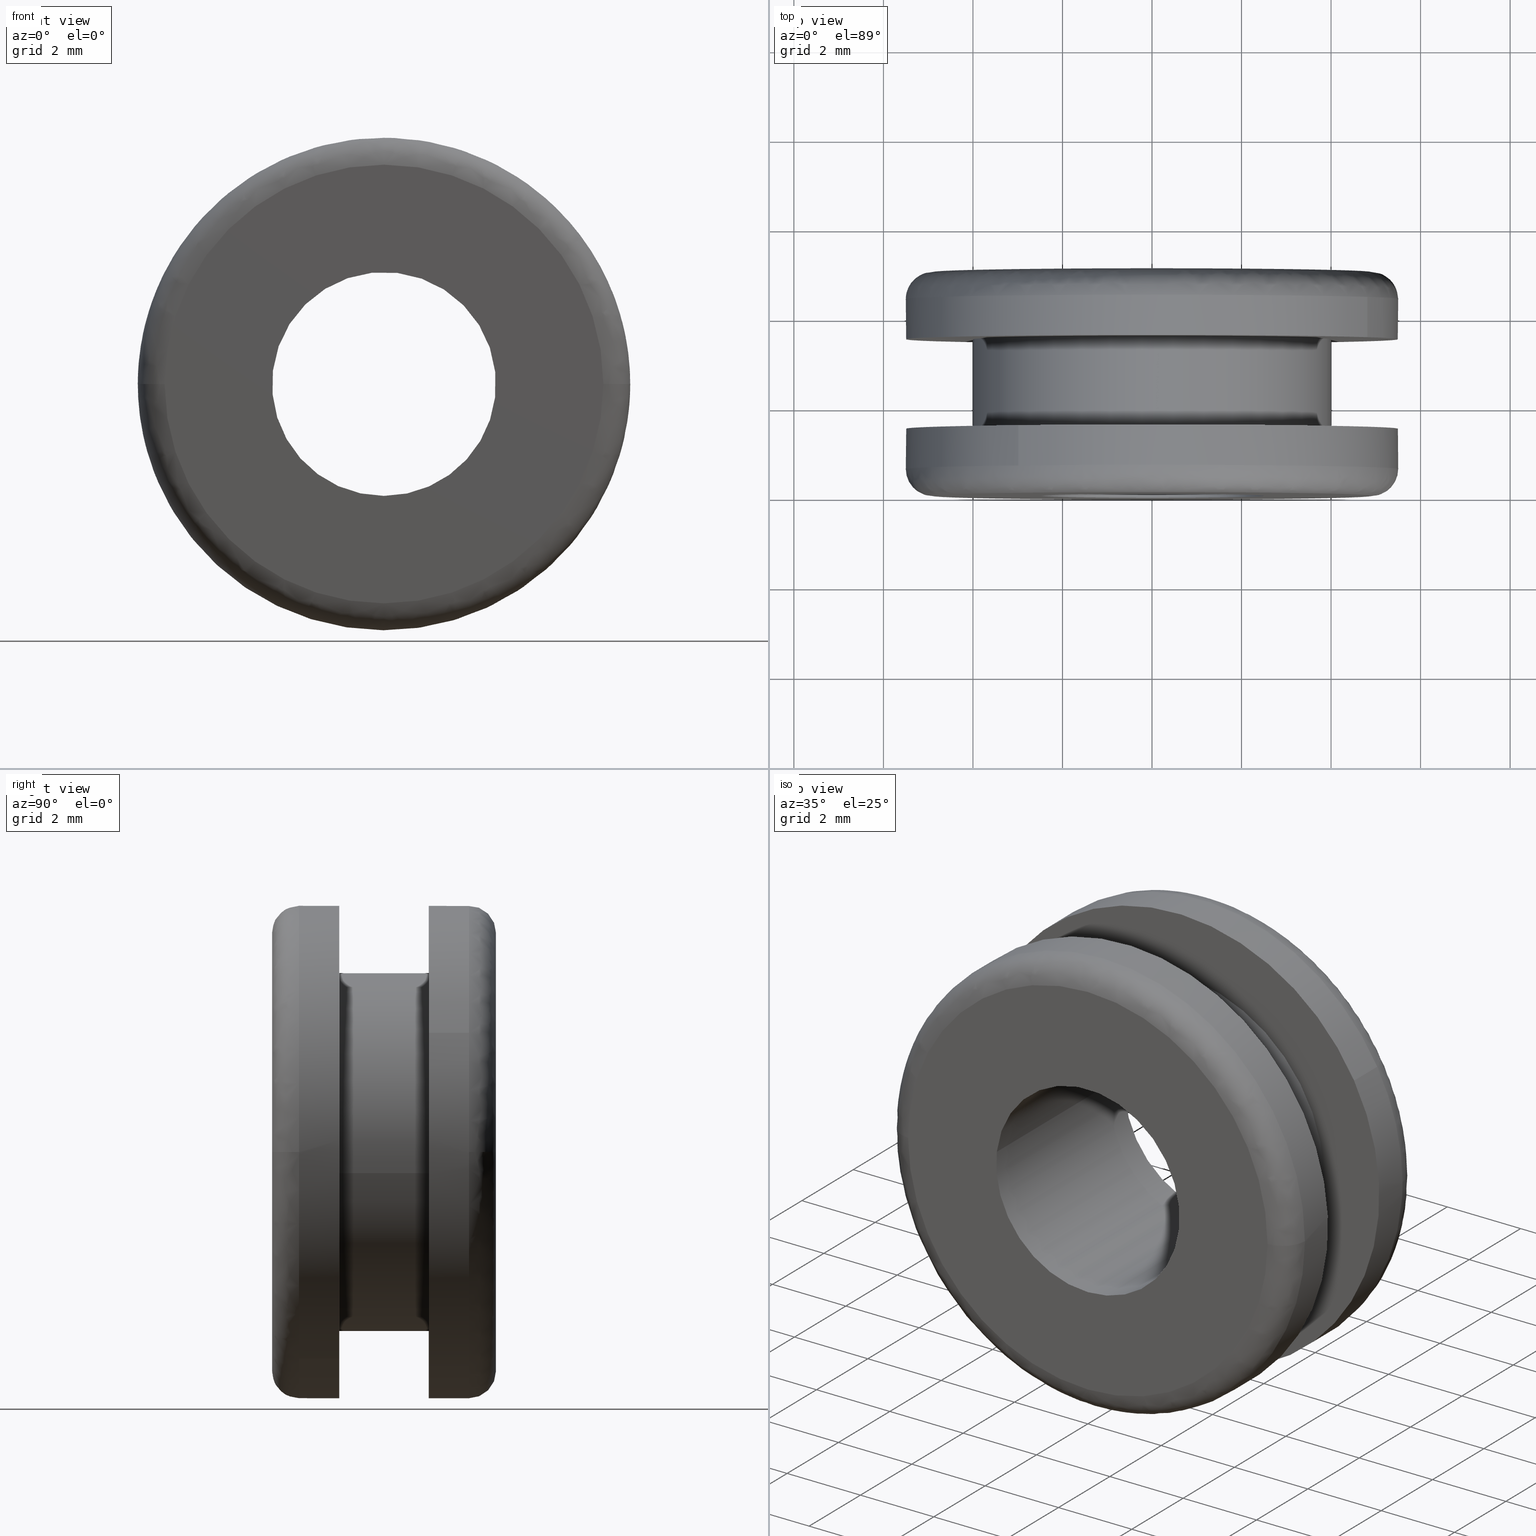
[diagram: canonical four-view strip — front | top / right | iso, engineering-drawing reading convention]
A machine part, canonical four-view strip (front | top / right | iso — engineering-drawing reading convention). The complete STEP part file that produces these views, byte-faithful:
ISO-10303-21;
HEADER;

FILE_DESCRIPTION( (''), '2;1');
FILE_NAME ('PC14.7972.TM_NG_79_A_2_CRUL_29005.stp','2019-12-12T16:33:39',(''),(''),'spGate 15.6.1','','');

FILE_SCHEMA (('AUTOMOTIVE_DESIGN'));
ENDSEC;

DATA;
#10=(GEOMETRIC_REPRESENTATION_CONTEXT(3) GLOBAL_UNCERTAINTY_ASSIGNED_CONTEXT((#11)) GLOBAL_UNIT_ASSIGNED_CONTEXT((#12,#13,#14)) REPRESENTATION_CONTEXT('ID1','3D'));
#11=UNCERTAINTY_MEASURE_WITH_UNIT(LENGTH_MEASURE(0.01),#15,'DISTANCE_ACCURACY_VALUE','Maximum model space distance between geometric entities at asserted connectivities');
#12=(NAMED_UNIT(*) SI_UNIT($,.STERADIAN.) SOLID_ANGLE_UNIT());
#13=(CONVERSION_BASED_UNIT('DEGREE',#16) NAMED_UNIT(#17) PLANE_ANGLE_UNIT());
#14=(LENGTH_UNIT() NAMED_UNIT(*) SI_UNIT(.MILLI.,.METRE.));
#15=(LENGTH_UNIT() NAMED_UNIT(*) SI_UNIT(.MILLI.,.METRE.));
#16=PLANE_ANGLE_MEASURE_WITH_UNIT(PLANE_ANGLE_MEASURE(0.01745329252),#18);
#17=DIMENSIONAL_EXPONENTS(0.0,0.0,0.0,0.0,0.0,0.0,0.0);
#18=(NAMED_UNIT(*) PLANE_ANGLE_UNIT() SI_UNIT($,.RADIAN.));
#19=MANIFOLD_SOLID_BREP('TM_NG_79_A_2_CRUL',#31);
#20=ADVANCED_BREP_SHAPE_REPRESENTATION('',(#19),#10);
#21=APPLICATION_CONTEXT('');
#22=APPLICATION_PROTOCOL_DEFINITION('International Standard','automotive_design',1999,#21);
#23=PRODUCT_DEFINITION_CONTEXT('',#21,'design');
#24=PRODUCT_CONTEXT('',#21,'mechanical');
#25=PRODUCT('','','',(#24));
#26=PRODUCT_DEFINITION_FORMATION_WITH_SPECIFIED_SOURCE('','',#25,.NOT_KNOWN.);
#27=PRODUCT_RELATED_PRODUCT_CATEGORY('tool','tool',(#25));
#28=PRODUCT_DEFINITION('','',#26,#23);
#29=PRODUCT_DEFINITION_SHAPE('','',#28);
#30=SHAPE_DEFINITION_REPRESENTATION(#29,#20);
#31=CLOSED_SHELL('',(#40,#41,#42,#43,#44,#45,#46,#47,#48,#49,#50,#51,#52,#53,#54,#55));
#32=COLOUR_RGB('',0.00000000000E+000,0.00000000000E+000,0.00000000000E+000);
#33=FILL_AREA_STYLE_COLOUR('',#32);
#34=FILL_AREA_STYLE('',(#33));
#35=SURFACE_STYLE_FILL_AREA(#34);
#36=SURFACE_SIDE_STYLE('',(#35));
#37=SURFACE_STYLE_USAGE(.BOTH.,#36);
#38=PRESENTATION_STYLE_ASSIGNMENT((#37));
#39=STYLED_ITEM('',(#38),#19);
#40=ADVANCED_FACE('',(#57,#58),#56,.F.);
#41=ADVANCED_FACE('',(#68,#69),#67,.F.);
#42=ADVANCED_FACE('',(#79,#80),#78,.F.);
#43=ADVANCED_FACE('',(#90,#91),#89,.F.);
#44=ADVANCED_FACE('',(#101),#100,.T.);
#45=ADVANCED_FACE('',(#111),#110,.T.);
#46=ADVANCED_FACE('',(#121),#120,.T.);
#47=ADVANCED_FACE('',(#131),#130,.T.);
#48=ADVANCED_FACE('',(#141),#140,.T.);
#49=ADVANCED_FACE('',(#151),#150,.T.);
#50=ADVANCED_FACE('',(#161),#160,.T.);
#51=ADVANCED_FACE('',(#171),#170,.T.);
#52=ADVANCED_FACE('',(#181),#180,.F.);
#53=ADVANCED_FACE('',(#191),#190,.F.);
#54=ADVANCED_FACE('',(#201),#200,.T.);
#55=ADVANCED_FACE('',(#211),#210,.T.);
#56=PLANE('',#223);
#57=FACE_OUTER_BOUND('',#224,.T.);
#58=FACE_BOUND('',#225,.T.);
#59=COLOUR_RGB('',1.00000000000E+000,1.00000000000E+000,1.00000000000E+000);
#60=FILL_AREA_STYLE_COLOUR('',#59);
#61=FILL_AREA_STYLE('',(#60));
#62=SURFACE_STYLE_FILL_AREA(#61);
#63=SURFACE_SIDE_STYLE('',(#62));
#64=SURFACE_STYLE_USAGE(.BOTH.,#63);
#65=PRESENTATION_STYLE_ASSIGNMENT((#64));
#66=STYLED_ITEM('',(#65),#40);
#67=PLANE('',#229);
#68=FACE_OUTER_BOUND('',#230,.T.);
#69=FACE_BOUND('',#231,.T.);
#70=COLOUR_RGB('',1.00000000000E+000,1.00000000000E+000,1.00000000000E+000);
#71=FILL_AREA_STYLE_COLOUR('',#70);
#72=FILL_AREA_STYLE('',(#71));
#73=SURFACE_STYLE_FILL_AREA(#72);
#74=SURFACE_SIDE_STYLE('',(#73));
#75=SURFACE_STYLE_USAGE(.BOTH.,#74);
#76=PRESENTATION_STYLE_ASSIGNMENT((#75));
#77=STYLED_ITEM('',(#76),#41);
#78=PLANE('',#235);
#79=FACE_OUTER_BOUND('',#236,.T.);
#80=FACE_BOUND('',#237,.T.);
#81=COLOUR_RGB('',1.00000000000E+000,1.00000000000E+000,1.00000000000E+000);
#82=FILL_AREA_STYLE_COLOUR('',#81);
#83=FILL_AREA_STYLE('',(#82));
#84=SURFACE_STYLE_FILL_AREA(#83);
#85=SURFACE_SIDE_STYLE('',(#84));
#86=SURFACE_STYLE_USAGE(.BOTH.,#85);
#87=PRESENTATION_STYLE_ASSIGNMENT((#86));
#88=STYLED_ITEM('',(#87),#42);
#89=PLANE('',#241);
#90=FACE_OUTER_BOUND('',#242,.T.);
#91=FACE_BOUND('',#243,.T.);
#92=COLOUR_RGB('',1.00000000000E+000,1.00000000000E+000,1.00000000000E+000);
#93=FILL_AREA_STYLE_COLOUR('',#92);
#94=FILL_AREA_STYLE('',(#93));
#95=SURFACE_STYLE_FILL_AREA(#94);
#96=SURFACE_SIDE_STYLE('',(#95));
#97=SURFACE_STYLE_USAGE(.BOTH.,#96);
#98=PRESENTATION_STYLE_ASSIGNMENT((#97));
#99=STYLED_ITEM('',(#98),#43);
#100=CYLINDRICAL_SURFACE('',#247,4.00000000000E+000);
#101=FACE_OUTER_BOUND('',#248,.T.);
#102=COLOUR_RGB('',1.00000000000E+000,1.00000000000E+000,1.00000000000E+000);
#103=FILL_AREA_STYLE_COLOUR('',#102);
#104=FILL_AREA_STYLE('',(#103));
#105=SURFACE_STYLE_FILL_AREA(#104);
#106=SURFACE_SIDE_STYLE('',(#105));
#107=SURFACE_STYLE_USAGE(.BOTH.,#106);
#108=PRESENTATION_STYLE_ASSIGNMENT((#107));
#109=STYLED_ITEM('',(#108),#44);
#110=CYLINDRICAL_SURFACE('',#252,4.00000000000E+000);
#111=FACE_OUTER_BOUND('',#253,.T.);
#112=COLOUR_RGB('',1.00000000000E+000,1.00000000000E+000,1.00000000000E+000);
#113=FILL_AREA_STYLE_COLOUR('',#112);
#114=FILL_AREA_STYLE('',(#113));
#115=SURFACE_STYLE_FILL_AREA(#114);
#116=SURFACE_SIDE_STYLE('',(#115));
#117=SURFACE_STYLE_USAGE(.BOTH.,#116);
#118=PRESENTATION_STYLE_ASSIGNMENT((#117));
#119=STYLED_ITEM('',(#118),#45);
#120=CYLINDRICAL_SURFACE('',#257,5.50000000000E+000);
#121=FACE_OUTER_BOUND('',#258,.T.);
#122=COLOUR_RGB('',1.00000000000E+000,1.00000000000E+000,1.00000000000E+000);
#123=FILL_AREA_STYLE_COLOUR('',#122);
#124=FILL_AREA_STYLE('',(#123));
#125=SURFACE_STYLE_FILL_AREA(#124);
#126=SURFACE_SIDE_STYLE('',(#125));
#127=SURFACE_STYLE_USAGE(.BOTH.,#126);
#128=PRESENTATION_STYLE_ASSIGNMENT((#127));
#129=STYLED_ITEM('',(#128),#46);
#130=CYLINDRICAL_SURFACE('',#262,5.50000000000E+000);
#131=FACE_OUTER_BOUND('',#263,.T.);
#132=COLOUR_RGB('',1.00000000000E+000,1.00000000000E+000,1.00000000000E+000);
#133=FILL_AREA_STYLE_COLOUR('',#132);
#134=FILL_AREA_STYLE('',(#133));
#135=SURFACE_STYLE_FILL_AREA(#134);
#136=SURFACE_SIDE_STYLE('',(#135));
#137=SURFACE_STYLE_USAGE(.BOTH.,#136);
#138=PRESENTATION_STYLE_ASSIGNMENT((#137));
#139=STYLED_ITEM('',(#138),#47);
#140=( BOUNDED_SURFACE() B_SPLINE_SURFACE( 2,2,((#264,#265,#266,#267,#268),(#269,#270,#271,#272,#273),(#274,#275,#276,#277,#278),(#279,#280,#281,#282,#283),(#284,#285,#286,#287,#288)), .UNSPECIFIED.,.F.,.F.,.F.) B_SPLINE_SURFACE_WITH_KNOTS((3,2,3),(3,2,3),(0.00000000000E+000,5.00000000000E-001,1.00000000000E+000),(0.00000000000E+000,5.00000000000E-001,1.00000000000E+000), .UNSPECIFIED. ) GEOMETRIC_REPRESENTATION_ITEM() RATIONAL_B_SPLINE_SURFACE(((1.00000000000E+000,7.07106779911E-001,1.00000000000E+000,7.07106779911E-001,1.00000000000E+000),(7.07106781187E-001,4.99999999098E-001,7.07106781187E-001,4.99999999098E-001,7.07106781187E-001),(1.00000000000E+000,7.07106779911E-001,1.00000000000E+000,7.07106779911E-001,1.00000000000E+000),(7.07106781187E-001,4.99999999098E-001,7.07106781187E-001,4.99999999098E-001,7.07106781187E-001),(1.00000000000E+000,7.07106779911E-001,1.00000000000E+000,7.07106779911E-001,1.00000000000E+000))) REPRESENTATION_ITEM('') SURFACE() );
#141=FACE_OUTER_BOUND('',#289,.T.);
#142=COLOUR_RGB('',1.00000000000E+000,1.00000000000E+000,1.00000000000E+000);
#143=FILL_AREA_STYLE_COLOUR('',#142);
#144=FILL_AREA_STYLE('',(#143));
#145=SURFACE_STYLE_FILL_AREA(#144);
#146=SURFACE_SIDE_STYLE('',(#145));
#147=SURFACE_STYLE_USAGE(.BOTH.,#146);
#148=PRESENTATION_STYLE_ASSIGNMENT((#147));
#149=STYLED_ITEM('',(#148),#48);
#150=( BOUNDED_SURFACE() B_SPLINE_SURFACE( 2,2,((#290,#291,#292,#293,#294),(#295,#296,#297,#298,#299),(#300,#301,#302,#303,#304),(#305,#306,#307,#308,#309),(#310,#311,#312,#313,#314)), .UNSPECIFIED.,.F.,.F.,.F.) B_SPLINE_SURFACE_WITH_KNOTS((3,2,3),(3,2,3),(0.00000000000E+000,5.00000000000E-001,1.00000000000E+000),(0.00000000000E+000,5.00000000000E-001,1.00000000000E+000), .UNSPECIFIED. ) GEOMETRIC_REPRESENTATION_ITEM() RATIONAL_B_SPLINE_SURFACE(((1.00000000000E+000,7.07106779911E-001,1.00000000000E+000,7.07106779911E-001,1.00000000000E+000),(7.07106781187E-001,4.99999999098E-001,7.07106781187E-001,4.99999999098E-001,7.07106781187E-001),(1.00000000000E+000,7.07106779911E-001,1.00000000000E+000,7.07106779911E-001,1.00000000000E+000),(7.07106781187E-001,4.99999999098E-001,7.07106781187E-001,4.99999999098E-001,7.07106781187E-001),(1.00000000000E+000,7.07106779911E-001,1.00000000000E+000,7.07106779911E-001,1.00000000000E+000))) REPRESENTATION_ITEM('') SURFACE() );
#151=FACE_OUTER_BOUND('',#315,.T.);
#152=COLOUR_RGB('',1.00000000000E+000,1.00000000000E+000,1.00000000000E+000);
#153=FILL_AREA_STYLE_COLOUR('',#152);
#154=FILL_AREA_STYLE('',(#153));
#155=SURFACE_STYLE_FILL_AREA(#154);
#156=SURFACE_SIDE_STYLE('',(#155));
#157=SURFACE_STYLE_USAGE(.BOTH.,#156);
#158=PRESENTATION_STYLE_ASSIGNMENT((#157));
#159=STYLED_ITEM('',(#158),#49);
#160=( BOUNDED_SURFACE() B_SPLINE_SURFACE( 2,2,((#316,#317,#318,#319,#320),(#321,#322,#323,#324,#325),(#326,#327,#328,#329,#330),(#331,#332,#333,#334,#335),(#336,#337,#338,#339,#340)), .UNSPECIFIED.,.F.,.F.,.F.) B_SPLINE_SURFACE_WITH_KNOTS((3,2,3),(3,2,3),(-2.11731291373E-006,1.04719684543E+000,1.57079709007E+000),(0.00000000000E+000,1.57079632679E+000,3.14159265359E+000), .UNSPECIFIED. ) GEOMETRIC_REPRESENTATION_ITEM() RATIONAL_B_SPLINE_SURFACE(((1.00000000000E+000,7.07106781187E-001,1.00000000000E+000,7.07106781187E-001,1.00000000000E+000),(8.66025050899E-001,6.12372186168E-001,8.66025050899E-001,6.12372186168E-001,8.66025050899E-001),(1.00000000000E+000,7.07106781187E-001,1.00000000000E+000,7.07106781187E-001,1.00000000000E+000),(9.33012427799E-001,6.59739414628E-001,9.33012427799E-001,6.59739414628E-001,9.33012427799E-001),(9.33012525450E-001,6.59739483677E-001,9.33012525450E-001,6.59739483677E-001,9.33012525450E-001))) REPRESENTATION_ITEM('') SURFACE() );
#161=FACE_OUTER_BOUND('',#341,.T.);
#162=COLOUR_RGB('',1.00000000000E+000,1.00000000000E+000,1.00000000000E+000);
#163=FILL_AREA_STYLE_COLOUR('',#162);
#164=FILL_AREA_STYLE('',(#163));
#165=SURFACE_STYLE_FILL_AREA(#164);
#166=SURFACE_SIDE_STYLE('',(#165));
#167=SURFACE_STYLE_USAGE(.BOTH.,#166);
#168=PRESENTATION_STYLE_ASSIGNMENT((#167));
#169=STYLED_ITEM('',(#168),#50);
#170=( BOUNDED_SURFACE() B_SPLINE_SURFACE( 2,2,((#342,#343,#344,#345,#346),(#347,#348,#349,#350,#351),(#352,#353,#354,#355,#356),(#357,#358,#359,#360,#361),(#362,#363,#364,#365,#366)), .UNSPECIFIED.,.F.,.F.,.F.) B_SPLINE_SURFACE_WITH_KNOTS((3,2,3),(3,2,3),(-2.11731291373E-006,1.04719684543E+000,1.57079858721E+000),(3.14159265359E+000,4.71238898038E+000,6.28318530718E+000), .UNSPECIFIED. ) GEOMETRIC_REPRESENTATION_ITEM() RATIONAL_B_SPLINE_SURFACE(((1.00000000000E+000,7.07106781187E-001,1.00000000000E+000,7.07106781187E-001,1.00000000000E+000),(8.66025050899E-001,6.12372186168E-001,8.66025050899E-001,6.12372186168E-001,8.66025050899E-001),(1.00000000000E+000,7.07106781187E-001,1.00000000000E+000,7.07106781187E-001,1.00000000000E+000),(9.33012236260E-001,6.59739279189E-001,9.33012236260E-001,6.59739279189E-001,9.33012236260E-001),(9.33012525451E-001,6.59739483678E-001,9.33012525451E-001,6.59739483678E-001,9.33012525451E-001))) REPRESENTATION_ITEM('') SURFACE() );
#171=FACE_OUTER_BOUND('',#367,.T.);
#172=COLOUR_RGB('',1.00000000000E+000,1.00000000000E+000,1.00000000000E+000);
#173=FILL_AREA_STYLE_COLOUR('',#172);
#174=FILL_AREA_STYLE('',(#173));
#175=SURFACE_STYLE_FILL_AREA(#174);
#176=SURFACE_SIDE_STYLE('',(#175));
#177=SURFACE_STYLE_USAGE(.BOTH.,#176);
#178=PRESENTATION_STYLE_ASSIGNMENT((#177));
#179=STYLED_ITEM('',(#178),#51);
#180=CYLINDRICAL_SURFACE('',#371,2.50000000000E+000);
#181=FACE_OUTER_BOUND('',#372,.T.);
#182=COLOUR_RGB('',1.00000000000E+000,1.00000000000E+000,1.00000000000E+000);
#183=FILL_AREA_STYLE_COLOUR('',#182);
#184=FILL_AREA_STYLE('',(#183));
#185=SURFACE_STYLE_FILL_AREA(#184);
#186=SURFACE_SIDE_STYLE('',(#185));
#187=SURFACE_STYLE_USAGE(.BOTH.,#186);
#188=PRESENTATION_STYLE_ASSIGNMENT((#187));
#189=STYLED_ITEM('',(#188),#52);
#190=CYLINDRICAL_SURFACE('',#376,2.50000000000E+000);
#191=FACE_OUTER_BOUND('',#377,.T.);
#192=COLOUR_RGB('',1.00000000000E+000,1.00000000000E+000,1.00000000000E+000);
#193=FILL_AREA_STYLE_COLOUR('',#192);
#194=FILL_AREA_STYLE('',(#193));
#195=SURFACE_STYLE_FILL_AREA(#194);
#196=SURFACE_SIDE_STYLE('',(#195));
#197=SURFACE_STYLE_USAGE(.BOTH.,#196);
#198=PRESENTATION_STYLE_ASSIGNMENT((#197));
#199=STYLED_ITEM('',(#198),#53);
#200=CYLINDRICAL_SURFACE('',#381,5.50000000000E+000);
#201=FACE_OUTER_BOUND('',#382,.T.);
#202=COLOUR_RGB('',1.00000000000E+000,1.00000000000E+000,1.00000000000E+000);
#203=FILL_AREA_STYLE_COLOUR('',#202);
#204=FILL_AREA_STYLE('',(#203));
#205=SURFACE_STYLE_FILL_AREA(#204);
#206=SURFACE_SIDE_STYLE('',(#205));
#207=SURFACE_STYLE_USAGE(.BOTH.,#206);
#208=PRESENTATION_STYLE_ASSIGNMENT((#207));
#209=STYLED_ITEM('',(#208),#54);
#210=CYLINDRICAL_SURFACE('',#386,5.50000000000E+000);
#211=FACE_OUTER_BOUND('',#387,.T.);
#212=COLOUR_RGB('',1.00000000000E+000,1.00000000000E+000,1.00000000000E+000);
#213=FILL_AREA_STYLE_COLOUR('',#212);
#214=FILL_AREA_STYLE('',(#213));
#215=SURFACE_STYLE_FILL_AREA(#214);
#216=SURFACE_SIDE_STYLE('',(#215));
#217=SURFACE_STYLE_USAGE(.BOTH.,#216);
#218=PRESENTATION_STYLE_ASSIGNMENT((#217));
#219=STYLED_ITEM('',(#218),#55);
#220=CARTESIAN_POINT('',(-1.14315353300E+001,1.50000000000E+000,1.26500000000E+001));
#221=DIRECTION('',(0.00000000000E+000,-1.00000000000E+000,0.00000000000E+000));
#222=DIRECTION('',(0.00000000000E+000,0.00000000000E+000,-1.00000000000E+000));
#223=AXIS2_PLACEMENT_3D('',#220,#221,#222);
#224=EDGE_LOOP('',(#388,#389,#390));
#225=EDGE_LOOP('',(#391,#392,#393));
#226=CARTESIAN_POINT('',(-1.14315360873E+001,3.50000000000E+000,-7.15000110808E+000));
#227=DIRECTION('',(0.00000000000E+000,1.00000000000E+000,0.00000000000E+000));
#228=DIRECTION('',(7.34098472730E-017,-0.00000000000E+000,1.00000000000E+000));
#229=AXIS2_PLACEMENT_3D('',#226,#227,#228);
#230=EDGE_LOOP('',(#394,#395,#396));
#231=EDGE_LOOP('',(#397,#398,#399));
#232=CARTESIAN_POINT('',(-1.01844587489E+001,5.00000000000E+000,1.12700000003E+001));
#233=DIRECTION('',(0.00000000000E+000,-1.00000000000E+000,0.00000000000E+000));
#234=DIRECTION('',(0.00000000000E+000,0.00000000000E+000,-1.00000000000E+000));
#235=AXIS2_PLACEMENT_3D('',#232,#233,#234);
#236=EDGE_LOOP('',(#400,#401,#402));
#237=EDGE_LOOP('',(#403,#404,#405));
#238=CARTESIAN_POINT('',(-1.01844587492E+001,-6.79656500000E-016,-1.12700000005E+001));
#239=DIRECTION('',(0.00000000000E+000,1.00000000000E+000,-0.00000000000E+000));
#240=DIRECTION('',(-8.23988074269E-017,0.00000000000E+000,1.00000000000E+000));
#241=AXIS2_PLACEMENT_3D('',#238,#239,#240);
#242=EDGE_LOOP('',(#406,#407,#408));
#243=EDGE_LOOP('',(#409,#410,#411));
#244=CARTESIAN_POINT('',(-6.11467403465E-016,3.55000000000E+000,-7.18594435448E-015));
#245=DIRECTION('',(-8.09860076763E-016,1.00000000000E+000,-6.81326713039E-015));
#246=DIRECTION('',(-9.93009526364E-001,-1.24245592572E-029,1.18034234657E-001));
#247=AXIS2_PLACEMENT_3D('',#244,#245,#246);
#248=EDGE_LOOP('',(#412,#413,#414,#415));
#249=CARTESIAN_POINT('',(-6.11467403465E-016,3.55000000000E+000,-7.18594435448E-015));
#250=DIRECTION('',(-8.09860076763E-016,1.00000000000E+000,-6.81326713039E-015));
#251=DIRECTION('',(-9.93009526364E-001,-1.24245592572E-029,1.18034234657E-001));
#252=AXIS2_PLACEMENT_3D('',#249,#250,#251);
#253=EDGE_LOOP('',(#416,#417,#418,#419,#420,#421));
#254=CARTESIAN_POINT('',(-1.70478042093E-016,1.52250000000E+000,1.78338816164E-015));
#255=DIRECTION('',(-1.25757397591E-016,1.00000000000E+000,1.48722527436E-017));
#256=DIRECTION('',(-5.42728861529E-001,-8.07434927000E-017,8.39907960948E-001));
#257=AXIS2_PLACEMENT_3D('',#254,#255,#256);
#258=EDGE_LOOP('',(#422,#423,#424,#425,#426,#427,#428));
#259=CARTESIAN_POINT('',(-1.70478042093E-016,1.52250000000E+000,1.78338816164E-015));
#260=DIRECTION('',(-1.25757397591E-016,1.00000000000E+000,1.48722527436E-017));
#261=DIRECTION('',(-5.42728861529E-001,-8.07434927000E-017,8.39907960948E-001));
#262=AXIS2_PLACEMENT_3D('',#259,#260,#261);
#263=EDGE_LOOP('',(#429,#430,#431,#432,#433,#434,#435,#436));
#264=CARTESIAN_POINT('',(-4.30000000000E+000,4.39999999567E+000,7.39038983879E-014));
#265=CARTESIAN_POINT('',(-4.29999999567E+000,4.99999999784E+000,7.68227708777E-014));
#266=CARTESIAN_POINT('',(-4.89999999784E+000,5.00000000000E+000,7.67492945067E-014));
#267=CARTESIAN_POINT('',(-5.50000000000E+000,5.00000000217E+000,7.66758181358E-014));
#268=CARTESIAN_POINT('',(-5.50000000000E+000,4.40000000000E+000,7.37569456465E-014));
#269=CARTESIAN_POINT('',(-4.30000000000E+000,4.39999999567E+000,-4.30000000000E+000));
#270=CARTESIAN_POINT('',(-4.29999999567E+000,4.99999999784E+000,-4.29999999567E+000));
#271=CARTESIAN_POINT('',(-4.89999999784E+000,5.00000000000E+000,-4.89999999784E+000));
#272=CARTESIAN_POINT('',(-5.50000000000E+000,5.00000000217E+000,-5.50000000000E+000));
#273=CARTESIAN_POINT('',(-5.50000000000E+000,4.40000000000E+000,-5.50000000000E+000));
#274=CARTESIAN_POINT('',(-2.00681178051E-012,4.39999999567E+000,-4.30000000000E+000));
#275=CARTESIAN_POINT('',(-1.94121887040E-012,4.99999999784E+000,-4.29999999567E+000));
#276=CARTESIAN_POINT('',(-1.94118213319E-012,5.00000000000E+000,-4.89999999784E+000));
#277=CARTESIAN_POINT('',(-1.94114539597E-012,5.00000000217E+000,-5.50000000000E+000));
#278=CARTESIAN_POINT('',(-2.00673830608E-012,4.40000000000E+000,-5.50000000000E+000));
#279=CARTESIAN_POINT('',(4.30000000000E+000,4.39999999567E+000,-4.30000000000E+000));
#280=CARTESIAN_POINT('',(4.29999999567E+000,4.99999999783E+000,-4.29999999567E+000));
#281=CARTESIAN_POINT('',(4.89999999783E+000,5.00000000000E+000,-4.89999999784E+000));
#282=CARTESIAN_POINT('',(5.50000000000E+000,5.00000000217E+000,-5.50000000000E+000));
#283=CARTESIAN_POINT('',(5.50000000000E+000,4.40000000000E+000,-5.50000000000E+000));
#284=CARTESIAN_POINT('',(4.30000000000E+000,4.39999999567E+000,7.44304617286E-014));
#285=CARTESIAN_POINT('',(4.29999999567E+000,4.99999999783E+000,7.73493342178E-014));
#286=CARTESIAN_POINT('',(4.89999999783E+000,5.00000000000E+000,7.73493318016E-014));
#287=CARTESIAN_POINT('',(5.50000000000E+000,5.00000000217E+000,7.73493293854E-014));
#288=CARTESIAN_POINT('',(5.50000000000E+000,4.40000000000E+000,7.44304568962E-014));
#289=EDGE_LOOP('',(#437,#438,#439,#440,#441,#442,#443,#444));
#290=CARTESIAN_POINT('',(4.30000000000E+000,4.39999999567E+000,7.44304617286E-014));
#291=CARTESIAN_POINT('',(4.29999999567E+000,4.99999999783E+000,7.73493342178E-014));
#292=CARTESIAN_POINT('',(4.89999999783E+000,5.00000000000E+000,7.73493318016E-014));
#293=CARTESIAN_POINT('',(5.50000000000E+000,5.00000000217E+000,7.73493293854E-014));
#294=CARTESIAN_POINT('',(5.50000000000E+000,4.40000000000E+000,7.44304568962E-014));
#295=CARTESIAN_POINT('',(4.30000000000E+000,4.39999999567E+000,4.30000000000E+000));
#296=CARTESIAN_POINT('',(4.29999999567E+000,4.99999999783E+000,4.29999999567E+000));
#297=CARTESIAN_POINT('',(4.89999999783E+000,5.00000000000E+000,4.89999999784E+000));
#298=CARTESIAN_POINT('',(5.50000000000E+000,5.00000000217E+000,5.50000000000E+000));
#299=CARTESIAN_POINT('',(5.50000000000E+000,4.40000000000E+000,5.50000000000E+000));
#300=CARTESIAN_POINT('',(-2.00681174573E-012,4.39999999567E+000,4.30000000000E+000));
#301=CARTESIAN_POINT('',(-1.94121883562E-012,4.99999999784E+000,4.29999999567E+000));
#302=CARTESIAN_POINT('',(-1.94118209355E-012,5.00000000000E+000,4.89999999784E+000));
#303=CARTESIAN_POINT('',(-1.94114535148E-012,5.00000000217E+000,5.50000000000E+000));
#304=CARTESIAN_POINT('',(-2.00673826159E-012,4.40000000000E+000,5.50000000000E+000));
#305=CARTESIAN_POINT('',(-4.30000000000E+000,4.39999999567E+000,4.30000000000E+000));
#306=CARTESIAN_POINT('',(-4.29999999567E+000,4.99999999784E+000,4.29999999567E+000));
#307=CARTESIAN_POINT('',(-4.89999999784E+000,5.00000000000E+000,4.89999999784E+000));
#308=CARTESIAN_POINT('',(-5.50000000000E+000,5.00000000217E+000,5.50000000000E+000));
#309=CARTESIAN_POINT('',(-5.50000000000E+000,4.40000000000E+000,5.50000000000E+000));
#310=CARTESIAN_POINT('',(-4.30000000000E+000,4.39999999567E+000,7.49570946352E-014));
#311=CARTESIAN_POINT('',(-4.29999999567E+000,4.99999999784E+000,7.78759671239E-014));
#312=CARTESIAN_POINT('',(-4.89999999784E+000,5.00000000000E+000,7.79494483694E-014));
#313=CARTESIAN_POINT('',(-5.50000000000E+000,5.00000000217E+000,7.80229296148E-014));
#314=CARTESIAN_POINT('',(-5.50000000000E+000,4.40000000000E+000,7.51040571256E-014));
#315=EDGE_LOOP('',(#445,#446,#447,#448,#449,#450));
#316=CARTESIAN_POINT('',(-5.50000000000E+000,6.00001270388E-001,8.52955117976E-014));
#317=CARTESIAN_POINT('',(-5.50000000000E+000,6.00001270388E-001,5.50000000000E+000));
#318=CARTESIAN_POINT('',(-2.47130738920E-012,6.00001270388E-001,5.50000000000E+000));
#319=CARTESIAN_POINT('',(5.49999999999E+000,6.00001270387E-001,5.50000000000E+000));
#320=CARTESIAN_POINT('',(5.49999999999E+000,6.00001270387E-001,8.39484448084E-014));
#321=CARTESIAN_POINT('',(-5.50000073346E+000,2.53590544258E-001,8.56389508929E-014));
#322=CARTESIAN_POINT('',(-5.50000073346E+000,2.53590544258E-001,5.50000073346E+000));
#323=CARTESIAN_POINT('',(-2.47964300537E-012,2.53590544258E-001,5.50000073346E+000));
#324=CARTESIAN_POINT('',(5.50000073345E+000,2.53590544257E-001,5.50000073346E+000));
#325=CARTESIAN_POINT('',(5.50000073345E+000,2.53590544257E-001,8.42918837240E-014));
#326=CARTESIAN_POINT('',(-5.20000036673E+000,8.03849694607E-002,8.57739323700E-014));
#327=CARTESIAN_POINT('',(-5.20000036673E+000,8.03849694607E-002,5.20000036673E+000));
#328=CARTESIAN_POINT('',(-2.48384755683E-012,8.03849694606E-002,5.20000036673E+000));
#329=CARTESIAN_POINT('',(5.20000036672E+000,8.03849694605E-002,5.20000036673E+000));
#330=CARTESIAN_POINT('',(5.20000036672E+000,8.03849694605E-002,8.45003416722E-014));
#331=CARTESIAN_POINT('',(-5.06076952486E+000,-1.25594168145E-007,8.58365775757E-014));
#332=CARTESIAN_POINT('',(-5.06076952486E+000,-1.25594163138E-007,5.06076952485E+000));
#333=CARTESIAN_POINT('',(-2.48579889858E-012,-1.25594284878E-007,5.06076952485E+000));
#334=CARTESIAN_POINT('',(5.06076952485E+000,-1.25594406632E-007,5.06076952485E+000));
#335=CARTESIAN_POINT('',(5.06076952485E+000,-1.25594411643E-007,8.45970874726E-014));
#336=CARTESIAN_POINT('',(-4.89999953128E+000,1.61435045093E-013,8.58168894556E-014));
#337=CARTESIAN_POINT('',(-4.89999953128E+000,1.66287750131E-013,4.89999953127E+000));
#338=CARTESIAN_POINT('',(-2.48581858355E-012,4.84136624938E-014,4.89999953127E+000));
#339=CARTESIAN_POINT('',(4.89999953127E+000,-6.94701099134E-014,4.89999953127E+000));
#340=CARTESIAN_POINT('',(4.89999953127E+000,-7.43279903784E-014,8.46167753437E-014));
#341=EDGE_LOOP('',(#451,#452,#453,#454,#455,#456,#457,#458));
#342=CARTESIAN_POINT('',(5.49999999999E+000,6.00001270387E-001,8.39484448084E-014));
#343=CARTESIAN_POINT('',(5.49999999999E+000,6.00001270387E-001,-5.50000000000E+000));
#344=CARTESIAN_POINT('',(-2.47265445619E-012,6.00001270388E-001,-5.50000000000E+000));
#345=CARTESIAN_POINT('',(-5.50000000000E+000,6.00001270388E-001,-5.50000000000E+000));
#346=CARTESIAN_POINT('',(-5.50000000000E+000,6.00001270388E-001,8.52955117976E-014));
#347=CARTESIAN_POINT('',(5.50000073345E+000,2.53590544257E-001,8.42918837240E-014));
#348=CARTESIAN_POINT('',(5.50000073345E+000,2.53590544257E-001,-5.50000073346E+000));
#349=CARTESIAN_POINT('',(-2.48099007254E-012,2.53590544258E-001,-5.50000073346E+000));
#350=CARTESIAN_POINT('',(-5.50000073346E+000,2.53590544258E-001,-5.50000073346E+000));
#351=CARTESIAN_POINT('',(-5.50000073346E+000,2.53590544258E-001,8.56389508929E-014));
#352=CARTESIAN_POINT('',(5.20000036672E+000,8.03849694605E-002,8.45003416722E-014));
#353=CARTESIAN_POINT('',(5.20000036672E+000,8.03849694605E-002,-5.20000036673E+000));
#354=CARTESIAN_POINT('',(-2.48512114753E-012,8.03849694606E-002,-5.20000036673E+000));
#355=CARTESIAN_POINT('',(-5.20000036673E+000,8.03849694607E-002,-5.20000036673E+000));
#356=CARTESIAN_POINT('',(-5.20000036673E+000,8.03849694607E-002,8.57739323700E-014));
#357=CARTESIAN_POINT('',(5.06076909816E+000,-3.71943737710E-007,8.45970877691E-014));
#358=CARTESIAN_POINT('',(5.06076909816E+000,-3.71943742724E-007,-5.06076909817E+000));
#359=CARTESIAN_POINT('',(-2.48703839456E-012,-3.71943620970E-007,-5.06076909817E+000));
#360=CARTESIAN_POINT('',(-5.06076909817E+000,-3.71943499230E-007,-5.06076909817E+000));
#361=CARTESIAN_POINT('',(-5.06076909817E+000,-3.71943494213E-007,8.58365777677E-014));
#362=CARTESIAN_POINT('',(4.89999861189E+000,1.34829441080E-012,8.46167754563E-014));
#363=CARTESIAN_POINT('',(4.89999861189E+000,1.34343926353E-012,-4.89999861189E+000));
#364=CARTESIAN_POINT('',(-2.48701869755E-012,1.46132321990E-012,-4.89999861189E+000));
#365=CARTESIAN_POINT('',(-4.89999861189E+000,1.57919973089E-012,-4.89999861189E+000));
#366=CARTESIAN_POINT('',(-4.89999861189E+000,1.58405742418E-012,8.58168893430E-014));
#367=EDGE_LOOP('',(#459,#460,#461,#462,#463,#464,#465));
#368=CARTESIAN_POINT('',(3.24682329081E-015,5.12500000000E+000,2.72371967568E-014));
#369=DIRECTION('',(1.22822381310E-015,1.00000000000E+000,1.03329169750E-014));
#370=DIRECTION('',(-9.93009526364E-001,-1.13793185578E-028,1.18034234657E-001));
#371=AXIS2_PLACEMENT_3D('',#368,#369,#370);
#372=EDGE_LOOP('',(#466,#467,#468,#469));
#373=CARTESIAN_POINT('',(3.24682329081E-015,5.12500000000E+000,2.72371967568E-014));
#374=DIRECTION('',(1.22822381310E-015,1.00000000000E+000,1.03329169750E-014));
#375=DIRECTION('',(-9.93009526364E-001,-1.13793185578E-028,1.18034234657E-001));
#376=AXIS2_PLACEMENT_3D('',#373,#374,#375);
#377=EDGE_LOOP('',(#470,#471,#472,#473,#474,#475));
#378=CARTESIAN_POINT('',(2.34197548228E-016,4.42250000003E+000,-1.96302473806E-015));
#379=DIRECTION('',(4.95361328777E-016,1.00000000000E+000,-3.94829318327E-016));
#380=DIRECTION('',(-8.74946427443E-001,2.42230478100E-016,-4.84219732254E-001));
#381=AXIS2_PLACEMENT_3D('',#378,#379,#380);
#382=EDGE_LOOP('',(#476,#477,#478,#479,#480,#481));
#383=CARTESIAN_POINT('',(2.34197548228E-016,4.42250000003E+000,-1.96302473806E-015));
#384=DIRECTION('',(4.95361328777E-016,1.00000000000E+000,-3.94829318327E-016));
#385=DIRECTION('',(-8.74946427443E-001,2.42230478100E-016,-4.84219732254E-001));
#386=AXIS2_PLACEMENT_3D('',#383,#384,#385);
#387=EDGE_LOOP('',(#482,#483,#484,#485,#486,#487,#488,#489));
#388=ORIENTED_EDGE('',*,*,#490,.F.);
#389=ORIENTED_EDGE('',*,*,#491,.F.);
#390=ORIENTED_EDGE('',*,*,#492,.F.);
#391=ORIENTED_EDGE('',*,*,#493,.T.);
#392=ORIENTED_EDGE('',*,*,#494,.T.);
#393=ORIENTED_EDGE('',*,*,#495,.T.);
#394=ORIENTED_EDGE('',*,*,#496,.T.);
#395=ORIENTED_EDGE('',*,*,#497,.T.);
#396=ORIENTED_EDGE('',*,*,#498,.T.);
#397=ORIENTED_EDGE('',*,*,#499,.F.);
#398=ORIENTED_EDGE('',*,*,#500,.F.);
#399=ORIENTED_EDGE('',*,*,#501,.F.);
#400=ORIENTED_EDGE('',*,*,#502,.F.);
#401=ORIENTED_EDGE('',*,*,#503,.F.);
#402=ORIENTED_EDGE('',*,*,#504,.F.);
#403=ORIENTED_EDGE('',*,*,#505,.T.);
#404=ORIENTED_EDGE('',*,*,#506,.T.);
#405=ORIENTED_EDGE('',*,*,#507,.T.);
#406=ORIENTED_EDGE('',*,*,#508,.T.);
#407=ORIENTED_EDGE('',*,*,#509,.T.);
#408=ORIENTED_EDGE('',*,*,#510,.T.);
#409=ORIENTED_EDGE('',*,*,#511,.F.);
#410=ORIENTED_EDGE('',*,*,#512,.F.);
#411=ORIENTED_EDGE('',*,*,#513,.F.);
#412=ORIENTED_EDGE('',*,*,#500,.T.);
#413=ORIENTED_EDGE('',*,*,#514,.F.);
#414=ORIENTED_EDGE('',*,*,#494,.F.);
#415=ORIENTED_EDGE('',*,*,#515,.T.);
#416=ORIENTED_EDGE('',*,*,#493,.F.);
#417=ORIENTED_EDGE('',*,*,#495,.F.);
#418=ORIENTED_EDGE('',*,*,#514,.T.);
#419=ORIENTED_EDGE('',*,*,#499,.T.);
#420=ORIENTED_EDGE('',*,*,#501,.T.);
#421=ORIENTED_EDGE('',*,*,#515,.F.);
#422=ORIENTED_EDGE('',*,*,#491,.T.);
#423=ORIENTED_EDGE('',*,*,#516,.F.);
#424=ORIENTED_EDGE('',*,*,#517,.F.);
#425=ORIENTED_EDGE('',*,*,#518,.F.);
#426=ORIENTED_EDGE('',*,*,#519,.F.);
#427=ORIENTED_EDGE('',*,*,#520,.F.);
#428=ORIENTED_EDGE('',*,*,#521,.T.);
#429=ORIENTED_EDGE('',*,*,#522,.F.);
#430=ORIENTED_EDGE('',*,*,#523,.F.);
#431=ORIENTED_EDGE('',*,*,#524,.F.);
#432=ORIENTED_EDGE('',*,*,#525,.F.);
#433=ORIENTED_EDGE('',*,*,#516,.T.);
#434=ORIENTED_EDGE('',*,*,#490,.T.);
#435=ORIENTED_EDGE('',*,*,#492,.T.);
#436=ORIENTED_EDGE('',*,*,#521,.F.);
#437=ORIENTED_EDGE('',*,*,#526,.F.);
#438=ORIENTED_EDGE('',*,*,#527,.F.);
#439=ORIENTED_EDGE('',*,*,#528,.F.);
#440=ORIENTED_EDGE('',*,*,#529,.F.);
#441=ORIENTED_EDGE('',*,*,#530,.F.);
#442=ORIENTED_EDGE('',*,*,#502,.T.);
#443=ORIENTED_EDGE('',*,*,#504,.T.);
#444=ORIENTED_EDGE('',*,*,#531,.T.);
#445=ORIENTED_EDGE('',*,*,#503,.T.);
#446=ORIENTED_EDGE('',*,*,#530,.T.);
#447=ORIENTED_EDGE('',*,*,#532,.F.);
#448=ORIENTED_EDGE('',*,*,#533,.F.);
#449=ORIENTED_EDGE('',*,*,#534,.F.);
#450=ORIENTED_EDGE('',*,*,#531,.F.);
#451=ORIENTED_EDGE('',*,*,#518,.T.);
#452=ORIENTED_EDGE('',*,*,#517,.T.);
#453=ORIENTED_EDGE('',*,*,#525,.T.);
#454=ORIENTED_EDGE('',*,*,#524,.T.);
#455=ORIENTED_EDGE('',*,*,#535,.T.);
#456=ORIENTED_EDGE('',*,*,#508,.F.);
#457=ORIENTED_EDGE('',*,*,#510,.F.);
#458=ORIENTED_EDGE('',*,*,#536,.F.);
#459=ORIENTED_EDGE('',*,*,#509,.F.);
#460=ORIENTED_EDGE('',*,*,#535,.F.);
#461=ORIENTED_EDGE('',*,*,#523,.T.);
#462=ORIENTED_EDGE('',*,*,#522,.T.);
#463=ORIENTED_EDGE('',*,*,#520,.T.);
#464=ORIENTED_EDGE('',*,*,#519,.T.);
#465=ORIENTED_EDGE('',*,*,#536,.T.);
#466=ORIENTED_EDGE('',*,*,#512,.T.);
#467=ORIENTED_EDGE('',*,*,#537,.T.);
#468=ORIENTED_EDGE('',*,*,#506,.F.);
#469=ORIENTED_EDGE('',*,*,#538,.F.);
#470=ORIENTED_EDGE('',*,*,#505,.F.);
#471=ORIENTED_EDGE('',*,*,#507,.F.);
#472=ORIENTED_EDGE('',*,*,#537,.F.);
#473=ORIENTED_EDGE('',*,*,#511,.T.);
#474=ORIENTED_EDGE('',*,*,#513,.T.);
#475=ORIENTED_EDGE('',*,*,#538,.T.);
#476=ORIENTED_EDGE('',*,*,#533,.T.);
#477=ORIENTED_EDGE('',*,*,#532,.T.);
#478=ORIENTED_EDGE('',*,*,#529,.T.);
#479=ORIENTED_EDGE('',*,*,#539,.F.);
#480=ORIENTED_EDGE('',*,*,#497,.F.);
#481=ORIENTED_EDGE('',*,*,#540,.T.);
#482=ORIENTED_EDGE('',*,*,#496,.F.);
#483=ORIENTED_EDGE('',*,*,#498,.F.);
#484=ORIENTED_EDGE('',*,*,#539,.T.);
#485=ORIENTED_EDGE('',*,*,#528,.T.);
#486=ORIENTED_EDGE('',*,*,#527,.T.);
#487=ORIENTED_EDGE('',*,*,#526,.T.);
#488=ORIENTED_EDGE('',*,*,#534,.T.);
#489=ORIENTED_EDGE('',*,*,#540,.F.);
#490=EDGE_CURVE('',#541,#542,#543,.T.);
#491=EDGE_CURVE('',#549,#541,#550,.T.);
#492=EDGE_CURVE('',#542,#549,#556,.T.);
#493=EDGE_CURVE('',#562,#563,#564,.T.);
#494=EDGE_CURVE('',#563,#570,#571,.T.);
#495=EDGE_CURVE('',#570,#562,#577,.T.);
#496=EDGE_CURVE('',#583,#584,#585,.T.);
#497=EDGE_CURVE('',#584,#591,#592,.T.);
#498=EDGE_CURVE('',#591,#583,#598,.T.);
#499=EDGE_CURVE('',#604,#605,#606,.T.);
#500=EDGE_CURVE('',#612,#604,#613,.T.);
#501=EDGE_CURVE('',#605,#612,#619,.T.);
#502=EDGE_CURVE('',#625,#626,#627,.T.);
#503=EDGE_CURVE('',#633,#625,#634,.T.);
#504=EDGE_CURVE('',#626,#633,#640,.T.);
#505=EDGE_CURVE('',#646,#647,#648,.T.);
#506=EDGE_CURVE('',#647,#654,#655,.T.);
#507=EDGE_CURVE('',#654,#646,#661,.T.);
#508=EDGE_CURVE('',#667,#668,#669,.T.);
#509=EDGE_CURVE('',#668,#675,#676,.T.);
#510=EDGE_CURVE('',#675,#667,#682,.T.);
#511=EDGE_CURVE('',#688,#689,#690,.T.);
#512=EDGE_CURVE('',#696,#688,#697,.T.);
#513=EDGE_CURVE('',#689,#696,#703,.T.);
#514=EDGE_CURVE('',#570,#604,#709,.T.);
#515=EDGE_CURVE('',#563,#612,#715,.T.);
#516=EDGE_CURVE('',#721,#541,#722,.T.);
#517=EDGE_CURVE('',#728,#721,#729,.T.);
#518=EDGE_CURVE('',#735,#728,#736,.T.);
#519=EDGE_CURVE('',#742,#735,#743,.T.);
#520=EDGE_CURVE('',#749,#742,#750,.T.);
#521=EDGE_CURVE('',#749,#549,#756,.T.);
#522=EDGE_CURVE('',#762,#749,#763,.T.);
#523=EDGE_CURVE('',#769,#762,#770,.T.);
#524=EDGE_CURVE('',#776,#769,#777,.T.);
#525=EDGE_CURVE('',#721,#776,#783,.T.);
#526=EDGE_CURVE('',#789,#790,#791,.T.);
#527=EDGE_CURVE('',#797,#789,#798,.T.);
#528=EDGE_CURVE('',#804,#797,#805,.T.);
#529=EDGE_CURVE('',#811,#804,#812,.T.);
#530=EDGE_CURVE('',#625,#811,#818,.T.);
#531=EDGE_CURVE('',#633,#790,#824,.T.);
#532=EDGE_CURVE('',#830,#811,#831,.T.);
#533=EDGE_CURVE('',#837,#830,#838,.T.);
#534=EDGE_CURVE('',#790,#837,#844,.T.);
#535=EDGE_CURVE('',#769,#668,#850,.T.);
#536=EDGE_CURVE('',#735,#675,#856,.T.);
#537=EDGE_CURVE('',#688,#654,#862,.T.);
#538=EDGE_CURVE('',#696,#647,#868,.T.);
#539=EDGE_CURVE('',#591,#804,#874,.T.);
#540=EDGE_CURVE('',#584,#837,#880,.T.);
#541=VERTEX_POINT('',#886);
#542=VERTEX_POINT('',#887);
#543=CIRCLE('',#891,5.50000000000E+000);
#544=COLOUR_RGB('',1.00000000000E+000,1.00000000000E+000,1.00000000000E+000);
#545=DRAUGHTING_PRE_DEFINED_CURVE_FONT('continuous');
#546=CURVE_STYLE( '',#545, POSITIVE_LENGTH_MEASURE(1.00000000000E-006),#544);
#547=PRESENTATION_STYLE_ASSIGNMENT((#546));
#548=STYLED_ITEM('',(#547),#490);
#549=VERTEX_POINT('',#892);
#550=CIRCLE('',#896,5.50000000000E+000);
#551=COLOUR_RGB('',1.00000000000E+000,1.00000000000E+000,1.00000000000E+000);
#552=DRAUGHTING_PRE_DEFINED_CURVE_FONT('continuous');
#553=CURVE_STYLE( '',#552, POSITIVE_LENGTH_MEASURE(1.00000000000E-006),#551);
#554=PRESENTATION_STYLE_ASSIGNMENT((#553));
#555=STYLED_ITEM('',(#554),#491);
#556=CIRCLE('',#900,5.50000000000E+000);
#557=COLOUR_RGB('',1.00000000000E+000,1.00000000000E+000,1.00000000000E+000);
#558=DRAUGHTING_PRE_DEFINED_CURVE_FONT('continuous');
#559=CURVE_STYLE( '',#558, POSITIVE_LENGTH_MEASURE(1.00000000000E-006),#557);
#560=PRESENTATION_STYLE_ASSIGNMENT((#559));
#561=STYLED_ITEM('',(#560),#492);
#562=VERTEX_POINT('',#901);
#563=VERTEX_POINT('',#902);
#564=CIRCLE('',#906,4.00000000000E+000);
#565=COLOUR_RGB('',1.00000000000E+000,1.00000000000E+000,1.00000000000E+000);
#566=DRAUGHTING_PRE_DEFINED_CURVE_FONT('continuous');
#567=CURVE_STYLE( '',#566, POSITIVE_LENGTH_MEASURE(1.00000000000E-006),#565);
#568=PRESENTATION_STYLE_ASSIGNMENT((#567));
#569=STYLED_ITEM('',(#568),#493);
#570=VERTEX_POINT('',#907);
#571=CIRCLE('',#911,4.00000000000E+000);
#572=COLOUR_RGB('',1.00000000000E+000,1.00000000000E+000,1.00000000000E+000);
#573=DRAUGHTING_PRE_DEFINED_CURVE_FONT('continuous');
#574=CURVE_STYLE( '',#573, POSITIVE_LENGTH_MEASURE(1.00000000000E-006),#572);
#575=PRESENTATION_STYLE_ASSIGNMENT((#574));
#576=STYLED_ITEM('',(#575),#494);
#577=CIRCLE('',#915,4.00000000000E+000);
#578=COLOUR_RGB('',1.00000000000E+000,1.00000000000E+000,1.00000000000E+000);
#579=DRAUGHTING_PRE_DEFINED_CURVE_FONT('continuous');
#580=CURVE_STYLE( '',#579, POSITIVE_LENGTH_MEASURE(1.00000000000E-006),#578);
#581=PRESENTATION_STYLE_ASSIGNMENT((#580));
#582=STYLED_ITEM('',(#581),#495);
#583=VERTEX_POINT('',#916);
#584=VERTEX_POINT('',#917);
#585=CIRCLE('',#921,5.50000036439E+000);
#586=COLOUR_RGB('',1.00000000000E+000,1.00000000000E+000,1.00000000000E+000);
#587=DRAUGHTING_PRE_DEFINED_CURVE_FONT('continuous');
#588=CURVE_STYLE( '',#587, POSITIVE_LENGTH_MEASURE(1.00000000000E-006),#586);
#589=PRESENTATION_STYLE_ASSIGNMENT((#588));
#590=STYLED_ITEM('',(#589),#496);
#591=VERTEX_POINT('',#922);
#592=CIRCLE('',#926,5.50000036439E+000);
#593=COLOUR_RGB('',1.00000000000E+000,1.00000000000E+000,1.00000000000E+000);
#594=DRAUGHTING_PRE_DEFINED_CURVE_FONT('continuous');
#595=CURVE_STYLE( '',#594, POSITIVE_LENGTH_MEASURE(1.00000000000E-006),#593);
#596=PRESENTATION_STYLE_ASSIGNMENT((#595));
#597=STYLED_ITEM('',(#596),#497);
#598=CIRCLE('',#930,5.50000036439E+000);
#599=COLOUR_RGB('',1.00000000000E+000,1.00000000000E+000,1.00000000000E+000);
#600=DRAUGHTING_PRE_DEFINED_CURVE_FONT('continuous');
#601=CURVE_STYLE( '',#600, POSITIVE_LENGTH_MEASURE(1.00000000000E-006),#599);
#602=PRESENTATION_STYLE_ASSIGNMENT((#601));
#603=STYLED_ITEM('',(#602),#498);
#604=VERTEX_POINT('',#931);
#605=VERTEX_POINT('',#932);
#606=CIRCLE('',#936,4.00000000000E+000);
#607=COLOUR_RGB('',1.00000000000E+000,1.00000000000E+000,1.00000000000E+000);
#608=DRAUGHTING_PRE_DEFINED_CURVE_FONT('continuous');
#609=CURVE_STYLE( '',#608, POSITIVE_LENGTH_MEASURE(1.00000000000E-006),#607);
#610=PRESENTATION_STYLE_ASSIGNMENT((#609));
#611=STYLED_ITEM('',(#610),#499);
#612=VERTEX_POINT('',#937);
#613=CIRCLE('',#941,4.00000000000E+000);
#614=COLOUR_RGB('',1.00000000000E+000,1.00000000000E+000,1.00000000000E+000);
#615=DRAUGHTING_PRE_DEFINED_CURVE_FONT('continuous');
#616=CURVE_STYLE( '',#615, POSITIVE_LENGTH_MEASURE(1.00000000000E-006),#614);
#617=PRESENTATION_STYLE_ASSIGNMENT((#616));
#618=STYLED_ITEM('',(#617),#500);
#619=CIRCLE('',#945,4.00000000000E+000);
#620=COLOUR_RGB('',1.00000000000E+000,1.00000000000E+000,1.00000000000E+000);
#621=DRAUGHTING_PRE_DEFINED_CURVE_FONT('continuous');
#622=CURVE_STYLE( '',#621, POSITIVE_LENGTH_MEASURE(1.00000000000E-006),#620);
#623=PRESENTATION_STYLE_ASSIGNMENT((#622));
#624=STYLED_ITEM('',(#623),#501);
#625=VERTEX_POINT('',#946);
#626=VERTEX_POINT('',#947);
#627=CIRCLE('',#951,4.90000000021E+000);
#628=COLOUR_RGB('',1.00000000000E+000,1.00000000000E+000,1.00000000000E+000);
#629=DRAUGHTING_PRE_DEFINED_CURVE_FONT('continuous');
#630=CURVE_STYLE( '',#629, POSITIVE_LENGTH_MEASURE(1.00000000000E-006),#628);
#631=PRESENTATION_STYLE_ASSIGNMENT((#630));
#632=STYLED_ITEM('',(#631),#502);
#633=VERTEX_POINT('',#952);
#634=CIRCLE('',#956,4.90000000021E+000);
#635=COLOUR_RGB('',1.00000000000E+000,1.00000000000E+000,1.00000000000E+000);
#636=DRAUGHTING_PRE_DEFINED_CURVE_FONT('continuous');
#637=CURVE_STYLE( '',#636, POSITIVE_LENGTH_MEASURE(1.00000000000E-006),#635);
#638=PRESENTATION_STYLE_ASSIGNMENT((#637));
#639=STYLED_ITEM('',(#638),#503);
#640=CIRCLE('',#960,4.90000000021E+000);
#641=COLOUR_RGB('',1.00000000000E+000,1.00000000000E+000,1.00000000000E+000);
#642=DRAUGHTING_PRE_DEFINED_CURVE_FONT('continuous');
#643=CURVE_STYLE( '',#642, POSITIVE_LENGTH_MEASURE(1.00000000000E-006),#641);
#644=PRESENTATION_STYLE_ASSIGNMENT((#643));
#645=STYLED_ITEM('',(#644),#504);
#646=VERTEX_POINT('',#961);
#647=VERTEX_POINT('',#962);
#648=CIRCLE('',#966,2.50000000000E+000);
#649=COLOUR_RGB('',1.00000000000E+000,1.00000000000E+000,1.00000000000E+000);
#650=DRAUGHTING_PRE_DEFINED_CURVE_FONT('continuous');
#651=CURVE_STYLE( '',#650, POSITIVE_LENGTH_MEASURE(1.00000000000E-006),#649);
#652=PRESENTATION_STYLE_ASSIGNMENT((#651));
#653=STYLED_ITEM('',(#652),#505);
#654=VERTEX_POINT('',#967);
#655=CIRCLE('',#971,2.50000000000E+000);
#656=COLOUR_RGB('',1.00000000000E+000,1.00000000000E+000,1.00000000000E+000);
#657=DRAUGHTING_PRE_DEFINED_CURVE_FONT('continuous');
#658=CURVE_STYLE( '',#657, POSITIVE_LENGTH_MEASURE(1.00000000000E-006),#656);
#659=PRESENTATION_STYLE_ASSIGNMENT((#658));
#660=STYLED_ITEM('',(#659),#506);
#661=CIRCLE('',#975,2.50000000000E+000);
#662=COLOUR_RGB('',1.00000000000E+000,1.00000000000E+000,1.00000000000E+000);
#663=DRAUGHTING_PRE_DEFINED_CURVE_FONT('continuous');
#664=CURVE_STYLE( '',#663, POSITIVE_LENGTH_MEASURE(1.00000000000E-006),#662);
#665=PRESENTATION_STYLE_ASSIGNMENT((#664));
#666=STYLED_ITEM('',(#665),#507);
#667=VERTEX_POINT('',#976);
#668=VERTEX_POINT('',#977);
#669=CIRCLE('',#981,4.90000000035E+000);
#670=COLOUR_RGB('',1.00000000000E+000,1.00000000000E+000,1.00000000000E+000);
#671=DRAUGHTING_PRE_DEFINED_CURVE_FONT('continuous');
#672=CURVE_STYLE( '',#671, POSITIVE_LENGTH_MEASURE(1.00000000000E-006),#670);
#673=PRESENTATION_STYLE_ASSIGNMENT((#672));
#674=STYLED_ITEM('',(#673),#508);
#675=VERTEX_POINT('',#982);
#676=CIRCLE('',#986,4.90000000035E+000);
#677=COLOUR_RGB('',1.00000000000E+000,1.00000000000E+000,1.00000000000E+000);
#678=DRAUGHTING_PRE_DEFINED_CURVE_FONT('continuous');
#679=CURVE_STYLE( '',#678, POSITIVE_LENGTH_MEASURE(1.00000000000E-006),#677);
#680=PRESENTATION_STYLE_ASSIGNMENT((#679));
#681=STYLED_ITEM('',(#680),#509);
#682=CIRCLE('',#990,4.90000000035E+000);
#683=COLOUR_RGB('',1.00000000000E+000,1.00000000000E+000,1.00000000000E+000);
#684=DRAUGHTING_PRE_DEFINED_CURVE_FONT('continuous');
#685=CURVE_STYLE( '',#684, POSITIVE_LENGTH_MEASURE(1.00000000000E-006),#683);
#686=PRESENTATION_STYLE_ASSIGNMENT((#685));
#687=STYLED_ITEM('',(#686),#510);
#688=VERTEX_POINT('',#991);
#689=VERTEX_POINT('',#992);
#690=CIRCLE('',#996,2.50000000000E+000);
#691=COLOUR_RGB('',1.00000000000E+000,1.00000000000E+000,1.00000000000E+000);
#692=DRAUGHTING_PRE_DEFINED_CURVE_FONT('continuous');
#693=CURVE_STYLE( '',#692, POSITIVE_LENGTH_MEASURE(1.00000000000E-006),#691);
#694=PRESENTATION_STYLE_ASSIGNMENT((#693));
#695=STYLED_ITEM('',(#694),#511);
#696=VERTEX_POINT('',#997);
#697=CIRCLE('',#1001,2.50000000000E+000);
#698=COLOUR_RGB('',1.00000000000E+000,1.00000000000E+000,1.00000000000E+000);
#699=DRAUGHTING_PRE_DEFINED_CURVE_FONT('continuous');
#700=CURVE_STYLE( '',#699, POSITIVE_LENGTH_MEASURE(1.00000000000E-006),#698);
#701=PRESENTATION_STYLE_ASSIGNMENT((#700));
#702=STYLED_ITEM('',(#701),#512);
#703=CIRCLE('',#1005,2.50000000000E+000);
#704=COLOUR_RGB('',1.00000000000E+000,1.00000000000E+000,1.00000000000E+000);
#705=DRAUGHTING_PRE_DEFINED_CURVE_FONT('continuous');
#706=CURVE_STYLE( '',#705, POSITIVE_LENGTH_MEASURE(1.00000000000E-006),#704);
#707=PRESENTATION_STYLE_ASSIGNMENT((#706));
#708=STYLED_ITEM('',(#707),#513);
#709=(BOUNDED_CURVE() B_SPLINE_CURVE(1,(#1006,#1007),.UNSPECIFIED.,.F.,.F.) B_SPLINE_CURVE_WITH_KNOTS((2,2),(8.33333134656E-002,9.16666653270E-001),.UNSPECIFIED.) CURVE() GEOMETRIC_REPRESENTATION_ITEM() RATIONAL_B_SPLINE_CURVE((1.00000000000E+000,1.00000000000E+000)) REPRESENTATION_ITEM('') );
#710=COLOUR_RGB('',1.00000000000E+000,1.00000000000E+000,1.00000000000E+000);
#711=DRAUGHTING_PRE_DEFINED_CURVE_FONT('continuous');
#712=CURVE_STYLE( '',#711, POSITIVE_LENGTH_MEASURE(1.00000000000E-006),#710);
#713=PRESENTATION_STYLE_ASSIGNMENT((#712));
#714=STYLED_ITEM('',(#713),#514);
#715=(BOUNDED_CURVE() B_SPLINE_CURVE(1,(#1008,#1009),.UNSPECIFIED.,.F.,.F.) B_SPLINE_CURVE_WITH_KNOTS((2,2),(8.33333333335E-002,9.16666666667E-001),.UNSPECIFIED.) CURVE() GEOMETRIC_REPRESENTATION_ITEM() RATIONAL_B_SPLINE_CURVE((7.50000000000E-001,7.50000000000E-001)) REPRESENTATION_ITEM('') );
#716=COLOUR_RGB('',1.00000000000E+000,1.00000000000E+000,1.00000000000E+000);
#717=DRAUGHTING_PRE_DEFINED_CURVE_FONT('continuous');
#718=CURVE_STYLE( '',#717, POSITIVE_LENGTH_MEASURE(1.00000000000E-006),#716);
#719=PRESENTATION_STYLE_ASSIGNMENT((#718));
#720=STYLED_ITEM('',(#719),#515);
#721=VERTEX_POINT('',#1010);
#722=(BOUNDED_CURVE() B_SPLINE_CURVE(1,(#1011,#1012),.UNSPECIFIED.,.F.,.F.) B_SPLINE_CURVE_WITH_KNOTS((2,2),(8.33333730703E-002,9.16666640476E-001),.UNSPECIFIED.) CURVE() GEOMETRIC_REPRESENTATION_ITEM() RATIONAL_B_SPLINE_CURVE((1.00000000000E+000,1.00000000000E+000)) REPRESENTATION_ITEM('') );
#723=COLOUR_RGB('',1.00000000000E+000,1.00000000000E+000,1.00000000000E+000);
#724=DRAUGHTING_PRE_DEFINED_CURVE_FONT('continuous');
#725=CURVE_STYLE( '',#724, POSITIVE_LENGTH_MEASURE(1.00000000000E-006),#723);
#726=PRESENTATION_STYLE_ASSIGNMENT((#725));
#727=STYLED_ITEM('',(#726),#516);
#728=VERTEX_POINT('',#1013);
#729=CIRCLE('',#1017,5.50000000000E+000);
#730=COLOUR_RGB('',1.00000000000E+000,1.00000000000E+000,1.00000000000E+000);
#731=DRAUGHTING_PRE_DEFINED_CURVE_FONT('continuous');
#732=CURVE_STYLE( '',#731, POSITIVE_LENGTH_MEASURE(1.00000000000E-006),#730);
#733=PRESENTATION_STYLE_ASSIGNMENT((#732));
#734=STYLED_ITEM('',(#733),#517);
#735=VERTEX_POINT('',#1018);
#736=CIRCLE('',#1022,5.50000000000E+000);
#737=COLOUR_RGB('',1.00000000000E+000,1.00000000000E+000,1.00000000000E+000);
#738=DRAUGHTING_PRE_DEFINED_CURVE_FONT('continuous');
#739=CURVE_STYLE( '',#738, POSITIVE_LENGTH_MEASURE(1.00000000000E-006),#737);
#740=PRESENTATION_STYLE_ASSIGNMENT((#739));
#741=STYLED_ITEM('',(#740),#518);
#742=VERTEX_POINT('',#1023);
#743=CIRCLE('',#1027,5.50000000000E+000);
#744=COLOUR_RGB('',1.00000000000E+000,1.00000000000E+000,1.00000000000E+000);
#745=DRAUGHTING_PRE_DEFINED_CURVE_FONT('continuous');
#746=CURVE_STYLE( '',#745, POSITIVE_LENGTH_MEASURE(1.00000000000E-006),#744);
#747=PRESENTATION_STYLE_ASSIGNMENT((#746));
#748=STYLED_ITEM('',(#747),#519);
#749=VERTEX_POINT('',#1028);
#750=CIRCLE('',#1032,5.49999910434E+000);
#751=COLOUR_RGB('',1.00000000000E+000,1.00000000000E+000,1.00000000000E+000);
#752=DRAUGHTING_PRE_DEFINED_CURVE_FONT('continuous');
#753=CURVE_STYLE( '',#752, POSITIVE_LENGTH_MEASURE(1.00000000000E-006),#751);
#754=PRESENTATION_STYLE_ASSIGNMENT((#753));
#755=STYLED_ITEM('',(#754),#520);
#756=(BOUNDED_CURVE() B_SPLINE_CURVE(1,(#1033,#1034),.UNSPECIFIED.,.F.,.F.) B_SPLINE_CURVE_WITH_KNOTS((2,2),(8.33333333619E-002,9.16666666667E-001),.UNSPECIFIED.) CURVE() GEOMETRIC_REPRESENTATION_ITEM() RATIONAL_B_SPLINE_CURVE((7.50000000000E-001,7.50000000000E-001)) REPRESENTATION_ITEM('') );
#757=COLOUR_RGB('',1.00000000000E+000,1.00000000000E+000,1.00000000000E+000);
#758=DRAUGHTING_PRE_DEFINED_CURVE_FONT('continuous');
#759=CURVE_STYLE( '',#758, POSITIVE_LENGTH_MEASURE(1.00000000000E-006),#757);
#760=PRESENTATION_STYLE_ASSIGNMENT((#759));
#761=STYLED_ITEM('',(#760),#521);
#762=VERTEX_POINT('',#1035);
#763=CIRCLE('',#1039,5.49999910434E+000);
#764=COLOUR_RGB('',1.00000000000E+000,1.00000000000E+000,1.00000000000E+000);
#765=DRAUGHTING_PRE_DEFINED_CURVE_FONT('continuous');
#766=CURVE_STYLE( '',#765, POSITIVE_LENGTH_MEASURE(1.00000000000E-006),#764);
#767=PRESENTATION_STYLE_ASSIGNMENT((#766));
#768=STYLED_ITEM('',(#767),#522);
#769=VERTEX_POINT('',#1040);
#770=CIRCLE('',#1044,5.50000064834E+000);
#771=COLOUR_RGB('',1.00000000000E+000,1.00000000000E+000,1.00000000000E+000);
#772=DRAUGHTING_PRE_DEFINED_CURVE_FONT('continuous');
#773=CURVE_STYLE( '',#772, POSITIVE_LENGTH_MEASURE(1.00000000000E-006),#771);
#774=PRESENTATION_STYLE_ASSIGNMENT((#773));
#775=STYLED_ITEM('',(#774),#523);
#776=VERTEX_POINT('',#1045);
#777=CIRCLE('',#1049,5.50000064834E+000);
#778=COLOUR_RGB('',1.00000000000E+000,1.00000000000E+000,1.00000000000E+000);
#779=DRAUGHTING_PRE_DEFINED_CURVE_FONT('continuous');
#780=CURVE_STYLE( '',#779, POSITIVE_LENGTH_MEASURE(1.00000000000E-006),#778);
#781=PRESENTATION_STYLE_ASSIGNMENT((#780));
#782=STYLED_ITEM('',(#781),#524);
#783=CIRCLE('',#1053,5.50000000000E+000);
#784=COLOUR_RGB('',1.00000000000E+000,1.00000000000E+000,1.00000000000E+000);
#785=DRAUGHTING_PRE_DEFINED_CURVE_FONT('continuous');
#786=CURVE_STYLE( '',#785, POSITIVE_LENGTH_MEASURE(1.00000000000E-006),#784);
#787=PRESENTATION_STYLE_ASSIGNMENT((#786));
#788=STYLED_ITEM('',(#787),#525);
#789=VERTEX_POINT('',#1054);
#790=VERTEX_POINT('',#1055);
#791=CIRCLE('',#1059,5.50000000000E+000);
#792=COLOUR_RGB('',1.00000000000E+000,1.00000000000E+000,1.00000000000E+000);
#793=DRAUGHTING_PRE_DEFINED_CURVE_FONT('continuous');
#794=CURVE_STYLE( '',#793, POSITIVE_LENGTH_MEASURE(1.00000000000E-006),#792);
#795=PRESENTATION_STYLE_ASSIGNMENT((#794));
#796=STYLED_ITEM('',(#795),#526);
#797=VERTEX_POINT('',#1060);
#798=CIRCLE('',#1064,5.50000000000E+000);
#799=COLOUR_RGB('',1.00000000000E+000,1.00000000000E+000,1.00000000000E+000);
#800=DRAUGHTING_PRE_DEFINED_CURVE_FONT('continuous');
#801=CURVE_STYLE( '',#800, POSITIVE_LENGTH_MEASURE(1.00000000000E-006),#799);
#802=PRESENTATION_STYLE_ASSIGNMENT((#801));
#803=STYLED_ITEM('',(#802),#527);
#804=VERTEX_POINT('',#1065);
#805=CIRCLE('',#1069,5.50000000000E+000);
#806=COLOUR_RGB('',1.00000000000E+000,1.00000000000E+000,1.00000000000E+000);
#807=DRAUGHTING_PRE_DEFINED_CURVE_FONT('continuous');
#808=CURVE_STYLE( '',#807, POSITIVE_LENGTH_MEASURE(1.00000000000E-006),#806);
#809=PRESENTATION_STYLE_ASSIGNMENT((#808));
#810=STYLED_ITEM('',(#809),#528);
#811=VERTEX_POINT('',#1070);
#812=CIRCLE('',#1074,5.50000000000E+000);
#813=COLOUR_RGB('',1.00000000000E+000,1.00000000000E+000,1.00000000000E+000);
#814=DRAUGHTING_PRE_DEFINED_CURVE_FONT('continuous');
#815=CURVE_STYLE( '',#814, POSITIVE_LENGTH_MEASURE(1.00000000000E-006),#813);
#816=PRESENTATION_STYLE_ASSIGNMENT((#815));
#817=STYLED_ITEM('',(#816),#529);
#818=(BOUNDED_CURVE() B_SPLINE_CURVE(2,(#1075,#1076,#1077),.UNSPECIFIED.,.F.,.F.) B_SPLINE_CURVE_WITH_KNOTS((3,3),(5.00000000000E-001,1.00000000000E+000),.UNSPECIFIED.) CURVE() GEOMETRIC_REPRESENTATION_ITEM() RATIONAL_B_SPLINE_CURVE((1.00000000000E+000,7.07106779911E-001,1.00000000000E+000)) REPRESENTATION_ITEM('') );
#819=COLOUR_RGB('',1.00000000000E+000,1.00000000000E+000,1.00000000000E+000);
#820=DRAUGHTING_PRE_DEFINED_CURVE_FONT('continuous');
#821=CURVE_STYLE( '',#820, POSITIVE_LENGTH_MEASURE(1.00000000000E-006),#819);
#822=PRESENTATION_STYLE_ASSIGNMENT((#821));
#823=STYLED_ITEM('',(#822),#530);
#824=(BOUNDED_CURVE() B_SPLINE_CURVE(3,(#1078,#1079,#1080,#1081),.UNSPECIFIED.,.F.,.F.) B_SPLINE_CURVE_WITH_KNOTS((4,4),(4.99999947806E-001,1.00000000000E+000),.UNSPECIFIED.) CURVE() GEOMETRIC_REPRESENTATION_ITEM() RATIONAL_B_SPLINE_CURVE((1.00000000000E+000,1.00000000000E+000,1.00000000000E+000,1.00000000000E+000)) REPRESENTATION_ITEM('') );
#825=COLOUR_RGB('',1.00000000000E+000,1.00000000000E+000,1.00000000000E+000);
#826=DRAUGHTING_PRE_DEFINED_CURVE_FONT('continuous');
#827=CURVE_STYLE( '',#826, POSITIVE_LENGTH_MEASURE(1.00000000000E-006),#825);
#828=PRESENTATION_STYLE_ASSIGNMENT((#827));
#829=STYLED_ITEM('',(#828),#531);
#830=VERTEX_POINT('',#1082);
#831=CIRCLE('',#1086,5.50000000000E+000);
#832=COLOUR_RGB('',1.00000000000E+000,1.00000000000E+000,1.00000000000E+000);
#833=DRAUGHTING_PRE_DEFINED_CURVE_FONT('continuous');
#834=CURVE_STYLE( '',#833, POSITIVE_LENGTH_MEASURE(1.00000000000E-006),#832);
#835=PRESENTATION_STYLE_ASSIGNMENT((#834));
#836=STYLED_ITEM('',(#835),#532);
#837=VERTEX_POINT('',#1087);
#838=CIRCLE('',#1091,5.50000000000E+000);
#839=COLOUR_RGB('',1.00000000000E+000,1.00000000000E+000,1.00000000000E+000);
#840=DRAUGHTING_PRE_DEFINED_CURVE_FONT('continuous');
#841=CURVE_STYLE( '',#840, POSITIVE_LENGTH_MEASURE(1.00000000000E-006),#839);
#842=PRESENTATION_STYLE_ASSIGNMENT((#841));
#843=STYLED_ITEM('',(#842),#533);
#844=CIRCLE('',#1095,5.50000000000E+000);
#845=COLOUR_RGB('',1.00000000000E+000,1.00000000000E+000,1.00000000000E+000);
#846=DRAUGHTING_PRE_DEFINED_CURVE_FONT('continuous');
#847=CURVE_STYLE( '',#846, POSITIVE_LENGTH_MEASURE(1.00000000000E-006),#845);
#848=PRESENTATION_STYLE_ASSIGNMENT((#847));
#849=STYLED_ITEM('',(#848),#534);
#850=(BOUNDED_CURVE() B_SPLINE_CURVE(2,(#1096,#1097,#1098,#1099,#1100),.UNSPECIFIED.,.F.,.F.) B_SPLINE_CURVE_WITH_KNOTS((3,2,3),(1.29733284848E-007,1.04719684543E+000,1.57079628518E+000),.UNSPECIFIED.) CURVE() GEOMETRIC_REPRESENTATION_ITEM() RATIONAL_B_SPLINE_CURVE((1.00000000000E+000,8.66025050899E-001,1.00000000000E+000,9.33012530773E-001,9.33012525449E-001)) REPRESENTATION_ITEM('') );
#851=COLOUR_RGB('',1.00000000000E+000,1.00000000000E+000,1.00000000000E+000);
#852=DRAUGHTING_PRE_DEFINED_CURVE_FONT('continuous');
#853=CURVE_STYLE( '',#852, POSITIVE_LENGTH_MEASURE(1.00000000000E-006),#851);
#854=PRESENTATION_STYLE_ASSIGNMENT((#853));
#855=STYLED_ITEM('',(#854),#535);
#856=(BOUNDED_CURVE() B_SPLINE_CURVE(2,(#1101,#1102,#1103,#1104,#1105),.UNSPECIFIED.,.F.,.F.) B_SPLINE_CURVE_WITH_KNOTS((3,2,3),(-2.11731291373E-006,1.04719684543E+000,1.57079709007E+000),.UNSPECIFIED.) CURVE() GEOMETRIC_REPRESENTATION_ITEM() RATIONAL_B_SPLINE_CURVE((1.00000000000E+000,8.66025050899E-001,1.00000000000E+000,9.33012427799E-001,9.33012525450E-001)) REPRESENTATION_ITEM('') );
#857=COLOUR_RGB('',1.00000000000E+000,1.00000000000E+000,1.00000000000E+000);
#858=DRAUGHTING_PRE_DEFINED_CURVE_FONT('continuous');
#859=CURVE_STYLE( '',#858, POSITIVE_LENGTH_MEASURE(1.00000000000E-006),#857);
#860=PRESENTATION_STYLE_ASSIGNMENT((#859));
#861=STYLED_ITEM('',(#860),#536);
#862=(BOUNDED_CURVE() B_SPLINE_CURVE(1,(#1106,#1107),.UNSPECIFIED.,.F.,.F.) B_SPLINE_CURVE_WITH_KNOTS((2,2),(8.33333383004E-002,9.16666664635E-001),.UNSPECIFIED.) CURVE() GEOMETRIC_REPRESENTATION_ITEM() RATIONAL_B_SPLINE_CURVE((1.00000000000E+000,1.00000000000E+000)) REPRESENTATION_ITEM('') );
#863=COLOUR_RGB('',1.00000000000E+000,1.00000000000E+000,1.00000000000E+000);
#864=DRAUGHTING_PRE_DEFINED_CURVE_FONT('continuous');
#865=CURVE_STYLE( '',#864, POSITIVE_LENGTH_MEASURE(1.00000000000E-006),#863);
#866=PRESENTATION_STYLE_ASSIGNMENT((#865));
#867=STYLED_ITEM('',(#866),#537);
#868=(BOUNDED_CURVE() B_SPLINE_CURVE(1,(#1108,#1109),.UNSPECIFIED.,.F.,.F.) B_SPLINE_CURVE_WITH_KNOTS((2,2),(8.33333333333E-002,9.16666666667E-001),.UNSPECIFIED.) CURVE() GEOMETRIC_REPRESENTATION_ITEM() RATIONAL_B_SPLINE_CURVE((7.50000000000E-001,7.50000000000E-001)) REPRESENTATION_ITEM('') );
#869=COLOUR_RGB('',1.00000000000E+000,1.00000000000E+000,1.00000000000E+000);
#870=DRAUGHTING_PRE_DEFINED_CURVE_FONT('continuous');
#871=CURVE_STYLE( '',#870, POSITIVE_LENGTH_MEASURE(1.00000000000E-006),#869);
#872=PRESENTATION_STYLE_ASSIGNMENT((#871));
#873=STYLED_ITEM('',(#872),#538);
#874=(BOUNDED_CURVE() B_SPLINE_CURVE(1,(#1110,#1111),.UNSPECIFIED.,.F.,.F.) B_SPLINE_CURVE_WITH_KNOTS((2,2),(8.33332935974E-002,9.16666633252E-001),.UNSPECIFIED.) CURVE() GEOMETRIC_REPRESENTATION_ITEM() RATIONAL_B_SPLINE_CURVE((1.00000000000E+000,1.00000000000E+000)) REPRESENTATION_ITEM('') );
#875=COLOUR_RGB('',1.00000000000E+000,1.00000000000E+000,1.00000000000E+000);
#876=DRAUGHTING_PRE_DEFINED_CURVE_FONT('continuous');
#877=CURVE_STYLE( '',#876, POSITIVE_LENGTH_MEASURE(1.00000000000E-006),#875);
#878=PRESENTATION_STYLE_ASSIGNMENT((#877));
#879=STYLED_ITEM('',(#878),#539);
#880=(BOUNDED_CURVE() B_SPLINE_CURVE(1,(#1112,#1113),.UNSPECIFIED.,.F.,.F.) B_SPLINE_CURVE_WITH_KNOTS((2,2),(8.33333333333E-002,9.16666666243E-001),.UNSPECIFIED.) CURVE() GEOMETRIC_REPRESENTATION_ITEM() RATIONAL_B_SPLINE_CURVE((7.50000000000E-001,7.50000000000E-001)) REPRESENTATION_ITEM('') );
#881=COLOUR_RGB('',1.00000000000E+000,1.00000000000E+000,1.00000000000E+000);
#882=DRAUGHTING_PRE_DEFINED_CURVE_FONT('continuous');
#883=CURVE_STYLE( '',#882, POSITIVE_LENGTH_MEASURE(1.00000000000E-006),#881);
#884=PRESENTATION_STYLE_ASSIGNMENT((#883));
#885=STYLED_ITEM('',(#884),#540);
#886=CARTESIAN_POINT('',(-2.98500873763E+000,1.50000000000E+000,4.61949378572E+000));
#887=CARTESIAN_POINT('',(-3.10862446895E-015,1.50000000000E+000,-5.50000000000E+000));
#888=CARTESIAN_POINT('',(4.77395900589E-014,1.50000000000E+000,6.23945339839E-014));
#889=DIRECTION('',(2.95784048121E-016,-1.00000000000E+000,2.39195515702E-016));
#890=DIRECTION('',(-8.77076189454E-015,-2.39195515702E-016,-1.00000000000E+000));
#891=AXIS2_PLACEMENT_3D('',#888,#889,#890);
#892=CARTESIAN_POINT('',(2.98639957453E+000,1.50000000000E+000,-4.61859476262E+000));
#893=CARTESIAN_POINT('',(4.77395900589E-014,1.50000000000E+000,6.23945339839E-014));
#894=DIRECTION('',(2.95784048121E-016,-1.00000000000E+000,2.39195515702E-016));
#895=DIRECTION('',(-8.77076189454E-015,-2.39195515702E-016,-1.00000000000E+000));
#896=AXIS2_PLACEMENT_3D('',#893,#894,#895);
#897=CARTESIAN_POINT('',(4.77395900589E-014,1.50000000000E+000,6.23945339839E-014));
#898=DIRECTION('',(2.95784048121E-016,-1.00000000000E+000,2.39195515702E-016));
#899=DIRECTION('',(-8.77076189454E-015,-2.39195515702E-016,-1.00000000000E+000));
#900=AXIS2_PLACEMENT_3D('',#897,#898,#899);
#901=CARTESIAN_POINT('',(1.11022302463E-016,1.50000000000E+000,-4.00000000000E+000));
#902=CARTESIAN_POINT('',(3.97195644383E+000,1.50000000000E+000,-4.72823443060E-001));
#903=CARTESIAN_POINT('',(1.05604414102E-012,1.50000000000E+000,2.32214247831E-012));
#904=DIRECTION('',(1.82452857553E-014,-1.00000000000E+000,1.21516374572E-013));
#905=DIRECTION('',(-2.63650212773E-013,-1.21516374572E-013,-1.00000000000E+000));
#906=AXIS2_PLACEMENT_3D('',#903,#904,#905);
#907=CARTESIAN_POINT('',(-3.97203820494E+000,1.50000000000E+000,4.72136101655E-001));
#908=CARTESIAN_POINT('',(1.05604414102E-012,1.50000000000E+000,2.32214247831E-012));
#909=DIRECTION('',(1.82452857553E-014,-1.00000000000E+000,1.21516374572E-013));
#910=DIRECTION('',(-2.63650212773E-013,-1.21516374572E-013,-1.00000000000E+000));
#911=AXIS2_PLACEMENT_3D('',#908,#909,#910);
#912=CARTESIAN_POINT('',(1.05604414102E-012,1.50000000000E+000,2.32214247831E-012));
#913=DIRECTION('',(1.82452857553E-014,-1.00000000000E+000,1.21516374572E-013));
#914=DIRECTION('',(-2.63650212773E-013,-1.21516374572E-013,-1.00000000000E+000));
#915=AXIS2_PLACEMENT_3D('',#912,#913,#914);
#916=CARTESIAN_POINT('',(-1.83399222221E-014,3.50000000000E+000,-5.50000072878E+000));
#917=CARTESIAN_POINT('',(4.81204951823E+000,3.50000000000E+000,2.66349072930E+000));
#918=CARTESIAN_POINT('',(1.41703984102E-007,3.50000000000E+000,-3.64391183005E-007));
#919=DIRECTION('',(5.70942712249E-017,-1.00000000000E+000,-5.65204409983E-016));
#920=DIRECTION('',(-2.57643618069E-008,5.65204408512E-016,-1.00000000000E+000));
#921=AXIS2_PLACEMENT_3D('',#918,#919,#920);
#922=CARTESIAN_POINT('',(-4.81220174616E+000,3.50000000000E+000,-2.66321590181E+000));
#923=CARTESIAN_POINT('',(1.41703984102E-007,3.50000000000E+000,-3.64391183005E-007));
#924=DIRECTION('',(5.70942712249E-017,-1.00000000000E+000,-5.65204409983E-016));
#925=DIRECTION('',(-2.57643618069E-008,5.65204408512E-016,-1.00000000000E+000));
#926=AXIS2_PLACEMENT_3D('',#923,#924,#925);
#927=CARTESIAN_POINT('',(1.41703984102E-007,3.50000000000E+000,-3.64391183005E-007));
#928=DIRECTION('',(5.70942712249E-017,-1.00000000000E+000,-5.65204409983E-016));
#929=DIRECTION('',(-2.57643618069E-008,5.65204408512E-016,-1.00000000000E+000));
#930=AXIS2_PLACEMENT_3D('',#927,#928,#929);
#931=CARTESIAN_POINT('',(-3.97203820494E+000,3.50000000000E+000,4.72136101655E-001));
#932=CARTESIAN_POINT('',(-1.33226762955E-015,3.50000000000E+000,-4.00000000000E+000));
#933=CARTESIAN_POINT('',(1.02895469922E-012,3.50000000000E+000,2.26307861340E-012));
#934=DIRECTION('',(-1.07402907431E-016,-1.00000000000E+000,2.85882782048E-015));
#935=DIRECTION('',(-2.57210919230E-013,-2.85882782048E-015,-1.00000000000E+000));
#936=AXIS2_PLACEMENT_3D('',#933,#934,#935);
#937=CARTESIAN_POINT('',(3.97195644383E+000,3.50000000000E+000,-4.72823443060E-001));
#938=CARTESIAN_POINT('',(1.02895469922E-012,3.50000000000E+000,2.26307861340E-012));
#939=DIRECTION('',(-1.07402907431E-016,-1.00000000000E+000,2.85882782048E-015));
#940=DIRECTION('',(-2.57210919230E-013,-2.85882782048E-015,-1.00000000000E+000));
#941=AXIS2_PLACEMENT_3D('',#938,#939,#940);
#942=CARTESIAN_POINT('',(1.02895469922E-012,3.50000000000E+000,2.26307861340E-012));
#943=DIRECTION('',(-1.07402907431E-016,-1.00000000000E+000,2.85882782048E-015));
#944=DIRECTION('',(-2.57210919230E-013,-2.85882782048E-015,-1.00000000000E+000));
#945=AXIS2_PLACEMENT_3D('',#942,#943,#944);
#946=CARTESIAN_POINT('',(-4.90000000030E+000,5.00000000000E+000,7.70674024815E-014));
#947=CARTESIAN_POINT('',(-7.77156117238E-016,5.00000000000E+000,-4.90000000042E+000));
#948=CARTESIAN_POINT('',(-9.15063580464E-011,5.00000000000E+000,-2.08899564313E-010));
#949=DIRECTION('',(-5.94021263675E-016,-1.00000000000E+000,-3.29904906444E-015));
#950=DIRECTION('',(1.86749782305E-011,3.29904906443E-015,-1.00000000000E+000));
#951=AXIS2_PLACEMENT_3D('',#948,#949,#950);
#952=CARTESIAN_POINT('',(4.89999997373E+000,5.00000000000E+000,5.08527685296E-004));
#953=CARTESIAN_POINT('',(-9.15063580464E-011,5.00000000000E+000,-2.08899564313E-010));
#954=DIRECTION('',(-5.94021263675E-016,-1.00000000000E+000,-3.29904906444E-015));
#955=DIRECTION('',(1.86749782305E-011,3.29904906443E-015,-1.00000000000E+000));
#956=AXIS2_PLACEMENT_3D('',#953,#954,#955);
#957=CARTESIAN_POINT('',(-9.15063580464E-011,5.00000000000E+000,-2.08899564313E-010));
#958=DIRECTION('',(-5.94021263675E-016,-1.00000000000E+000,-3.29904906444E-015));
#959=DIRECTION('',(1.86749782305E-011,3.29904906443E-015,-1.00000000000E+000));
#960=AXIS2_PLACEMENT_3D('',#957,#958,#959);
#961=CARTESIAN_POINT('',(-3.33066907388E-016,5.00000000000E+000,-2.49999999999E+000));
#962=CARTESIAN_POINT('',(2.48247277726E+000,5.00000000000E+000,-2.95514653005E-001));
#963=CARTESIAN_POINT('',(1.50524037679E-012,5.00000000000E+000,3.31268346088E-012));
#964=DIRECTION('',(1.53056328691E-014,-1.00000000000E+000,1.04686652417E-013));
#965=DIRECTION('',(-6.01865779437E-013,-1.04686652417E-013,-1.00000000000E+000));
#966=AXIS2_PLACEMENT_3D('',#963,#964,#965);
#967=CARTESIAN_POINT('',(-2.48252392382E+000,5.00000000000E+000,2.95084678797E-001));
#968=CARTESIAN_POINT('',(1.50524037679E-012,5.00000000000E+000,3.31268346088E-012));
#969=DIRECTION('',(1.53056328691E-014,-1.00000000000E+000,1.04686652417E-013));
#970=DIRECTION('',(-6.01865779437E-013,-1.04686652417E-013,-1.00000000000E+000));
#971=AXIS2_PLACEMENT_3D('',#968,#969,#970);
#972=CARTESIAN_POINT('',(1.50524037679E-012,5.00000000000E+000,3.31268346088E-012));
#973=DIRECTION('',(1.53056328691E-014,-1.00000000000E+000,1.04686652417E-013));
#974=DIRECTION('',(-6.01865779437E-013,-1.04686652417E-013,-1.00000000000E+000));
#975=AXIS2_PLACEMENT_3D('',#972,#973,#974);
#976=CARTESIAN_POINT('',(6.71594825352E-017,-2.11017492109E-014,4.90000000070E+000));
#977=CARTESIAN_POINT('',(-4.90000000042E+000,-1.10009174626E-014,3.79705125594E-009));
#978=CARTESIAN_POINT('',(-6.60995702617E-011,-1.10009174554E-014,3.49191342508E-010));
#979=DIRECTION('',(1.42298187706E-032,-1.00000000000E+000,-2.06139423566E-015));
#980=DIRECTION('',(1.34895994611E-011,-2.06139423566E-015,1.00000000000E+000));
#981=AXIS2_PLACEMENT_3D('',#978,#979,#980);
#982=CARTESIAN_POINT('',(4.90000000028E+000,-1.10009174530E-014,-8.44162196626E-010));
#983=CARTESIAN_POINT('',(-6.60995702617E-011,-1.10009174554E-014,3.49191342508E-010));
#984=DIRECTION('',(1.42298187706E-032,-1.00000000000E+000,-2.06139423566E-015));
#985=DIRECTION('',(1.34895994611E-011,-2.06139423566E-015,1.00000000000E+000));
#986=AXIS2_PLACEMENT_3D('',#983,#984,#985);
#987=CARTESIAN_POINT('',(-6.60995702617E-011,-1.10009174554E-014,3.49191342508E-010));
#988=DIRECTION('',(1.42298187706E-032,-1.00000000000E+000,-2.06139423566E-015));
#989=DIRECTION('',(1.34895994611E-011,-2.06139423566E-015,1.00000000000E+000));
#990=AXIS2_PLACEMENT_3D('',#987,#988,#989);
#991=CARTESIAN_POINT('',(-2.48252392382E+000,-5.25279740432E-016,2.95084678797E-001));
#992=CARTESIAN_POINT('',(-4.99600361081E-016,-1.06069839100E-015,-2.49999999999E+000));
#993=CARTESIAN_POINT('',(1.46971324000E-012,-5.08770534504E-016,3.23363558152E-012));
#994=DIRECTION('',(3.28920848837E-017,-1.00000000000E+000,2.20771142598E-016));
#995=DIRECTION('',(-5.87710435873E-013,-2.20771142598E-016,-1.00000000000E+000));
#996=AXIS2_PLACEMENT_3D('',#993,#994,#995);
#997=CARTESIAN_POINT('',(2.48247277726E+000,-4.92357936792E-016,-2.95514653005E-001));
#998=CARTESIAN_POINT('',(1.46971324000E-012,-5.08770534504E-016,3.23363558152E-012));
#999=DIRECTION('',(3.28920848837E-017,-1.00000000000E+000,2.20771142598E-016));
#1000=DIRECTION('',(-5.87710435873E-013,-2.20771142598E-016,-1.00000000000E+000));
#1001=AXIS2_PLACEMENT_3D('',#998,#999,#1000);
#1002=CARTESIAN_POINT('',(1.46971324000E-012,-5.08770534504E-016,3.23363558152E-012));
#1003=DIRECTION('',(3.28920848837E-017,-1.00000000000E+000,2.20771142598E-016));
#1004=DIRECTION('',(-5.87710435873E-013,-2.20771142598E-016,-1.00000000000E+000));
#1005=AXIS2_PLACEMENT_3D('',#1002,#1003,#1004);
#1006=CARTESIAN_POINT('',(-3.97203810545E+000,1.49999995232E+000,4.72136938627E-001));
#1007=CARTESIAN_POINT('',(-3.97203810545E+000,3.49999996785E+000,4.72136938627E-001));
#1008=CARTESIAN_POINT('',(3.97203810545E+000,1.50000000000E+000,-4.72136938627E-001));
#1009=CARTESIAN_POINT('',(3.97203810545E+000,3.50000000000E+000,-4.72136938627E-001));
#1010=CARTESIAN_POINT('',(-2.98500873914E+000,5.99999999998E-001,4.61949378474E+000));
#1011=CARTESIAN_POINT('',(-2.98500873841E+000,6.00000042905E-001,4.61949378521E+000));
#1012=CARTESIAN_POINT('',(-2.98500873841E+000,1.49999997171E+000,4.61949378521E+000));
#1013=CARTESIAN_POINT('',(0.00000000000E+000,6.00000000000E-001,5.50000000000E+000));
#1014=CARTESIAN_POINT('',(1.19682042055E-012,5.99999999988E-001,-1.28119737042E-012));
#1015=DIRECTION('',(3.59205878744E-028,-1.00000000000E+000,2.09715073590E-012));
#1016=DIRECTION('',(2.17603712826E-013,-2.09715073590E-012,-1.00000000000E+000));
#1017=AXIS2_PLACEMENT_3D('',#1014,#1015,#1016);
#1018=CARTESIAN_POINT('',(5.49999999719E+000,6.00000000011E-001,-1.75740065892E-004));
#1019=CARTESIAN_POINT('',(3.99680288865E-015,5.99999999982E-001,4.88498130835E-015));
#1020=DIRECTION('',(5.22485334515E-012,-1.00000000000E+000,3.09870782410E-010));
#1021=DIRECTION('',(-9.99921044204E-001,-1.33059220208E-012,1.25660398839E-002));
#1022=AXIS2_PLACEMENT_3D('',#1019,#1020,#1021);
#1023=CARTESIAN_POINT('',(5.49956574312E+000,5.99999999989E-001,-6.91132193614E-002));
#1024=CARTESIAN_POINT('',(3.99680288865E-015,5.99999999982E-001,4.88498130835E-015));
#1025=DIRECTION('',(5.22485334515E-012,-1.00000000000E+000,3.09870782410E-010));
#1026=DIRECTION('',(-9.99921044204E-001,-1.33059220208E-012,1.25660398839E-002));
#1027=AXIS2_PLACEMENT_3D('',#1024,#1025,#1026);
#1028=CARTESIAN_POINT('',(2.98510796961E+000,5.99999999998E-001,-4.61942966283E+000));
#1029=CARTESIAN_POINT('',(8.89555373362E-007,5.99999999989E-001,-4.91571322314E-007));
#1030=DIRECTION('',(8.93741585390E-015,-1.00000000000E+000,-1.97208037913E-012));
#1031=DIRECTION('',(-5.42728635713E-001,-1.66121688934E-012,8.39908106865E-001));
#1032=AXIS2_PLACEMENT_3D('',#1029,#1030,#1031);
#1033=CARTESIAN_POINT('',(2.98500873841E+000,6.00000000020E-001,-4.61949378521E+000));
#1034=CARTESIAN_POINT('',(2.98500873841E+000,1.50000000000E+000,-4.61949378521E+000));
#1035=CARTESIAN_POINT('',(-4.24393564637E+000,6.00000000000E-001,-3.49842968051E+000));
#1036=CARTESIAN_POINT('',(8.89555373362E-007,5.99999999989E-001,-4.91571322314E-007));
#1037=DIRECTION('',(8.93741585390E-015,-1.00000000000E+000,-1.97208037913E-012));
#1038=DIRECTION('',(-5.42728635713E-001,-1.66121688934E-012,8.39908106865E-001));
#1039=AXIS2_PLACEMENT_3D('',#1036,#1037,#1038);
#1040=CARTESIAN_POINT('',(-5.49999998354E+000,6.00000000011E-001,-3.31950941483E-011));
#1041=CARTESIAN_POINT('',(6.64798021077E-007,5.99999999921E-001,2.12812069078E-007));
#1042=DIRECTION('',(-1.62315183284E-011,-1.00000000000E+000,-5.48873869857E-011));
#1043=DIRECTION('',(9.97565677120E-001,-1.23645321818E-011,-6.97332046626E-002));
#1044=AXIS2_PLACEMENT_3D('',#1041,#1042,#1043);
#1045=CARTESIAN_POINT('',(-5.48661120612E+000,5.99999999989E-001,3.83532883667E-001));
#1046=CARTESIAN_POINT('',(6.64798021077E-007,5.99999999921E-001,2.12812069078E-007));
#1047=DIRECTION('',(-1.62315183284E-011,-1.00000000000E+000,-5.48873869857E-011));
#1048=DIRECTION('',(9.97565677120E-001,-1.23645321818E-011,-6.97332046626E-002));
#1049=AXIS2_PLACEMENT_3D('',#1046,#1047,#1048);
#1050=CARTESIAN_POINT('',(1.19682042055E-012,5.99999999988E-001,-1.28119737042E-012));
#1051=DIRECTION('',(3.59205878744E-028,-1.00000000000E+000,2.09715073590E-012));
#1052=DIRECTION('',(2.17603712826E-013,-2.09715073590E-012,-1.00000000000E+000));
#1053=AXIS2_PLACEMENT_3D('',#1050,#1051,#1052);
#1054=CARTESIAN_POINT('',(5.48661120612E+000,4.40000000003E+000,-3.83532883667E-001));
#1055=CARTESIAN_POINT('',(5.50000000000E+000,4.39999999997E+000,1.11497917188E-006));
#1056=CARTESIAN_POINT('',(7.63833440942E-013,4.40000000035E+000,-6.66133814775E-016));
#1057=DIRECTION('',(-6.81070261550E-011,-1.00000000000E+000,-1.38804812342E-010));
#1058=DIRECTION('',(-9.97565673840E-001,5.82619205406E-011,6.97332515759E-002));
#1059=AXIS2_PLACEMENT_3D('',#1056,#1057,#1058);
#1060=CARTESIAN_POINT('',(0.00000000000E+000,4.40000000000E+000,-5.50000000000E+000));
#1061=CARTESIAN_POINT('',(-1.21236354289E-012,4.40000000003E+000,1.29984911723E-012));
#1062=DIRECTION('',(1.14188542450E-016,-1.00000000000E+000,5.37412538713E-012));
#1063=DIRECTION('',(-2.20429735071E-013,5.37412538713E-012,1.00000000000E+000));
#1064=AXIS2_PLACEMENT_3D('',#1061,#1062,#1063);
#1065=CARTESIAN_POINT('',(-4.81220534752E+000,4.39999999786E+000,-2.66320853357E+000));
#1066=CARTESIAN_POINT('',(-5.77315972805E-015,4.40000000005E+000,-7.54951656745E-015));
#1067=DIRECTION('',(1.34141591574E-011,-1.00000000000E+000,7.95582968782E-010));
#1068=DIRECTION('',(9.99921044204E-001,3.41577271518E-012,-1.25660398839E-002));
#1069=AXIS2_PLACEMENT_3D('',#1066,#1067,#1068);
#1070=CARTESIAN_POINT('',(-5.50000000000E+000,4.39999999997E+000,7.37650183674E-014));
#1071=CARTESIAN_POINT('',(-5.77315972805E-015,4.40000000005E+000,-7.54951656745E-015));
#1072=DIRECTION('',(1.34141591574E-011,-1.00000000000E+000,7.95582968782E-010));
#1073=DIRECTION('',(9.99921044204E-001,3.41577271518E-012,-1.25660398839E-002));
#1074=AXIS2_PLACEMENT_3D('',#1071,#1072,#1073);
#1075=CARTESIAN_POINT('',(-4.89999999784E+000,5.00000000000E+000,7.67492945067E-014));
#1076=CARTESIAN_POINT('',(-5.50000000000E+000,5.00000000217E+000,7.66758181358E-014));
#1077=CARTESIAN_POINT('',(-5.50000000000E+000,4.40000000000E+000,7.37569456465E-014));
#1078=CARTESIAN_POINT('',(4.89999990926E+000,5.00000000000E+000,7.87518198127E-014));
#1079=CARTESIAN_POINT('',(5.26568538112E+000,4.96568546877E+000,7.82964955910E-014));
#1080=CARTESIAN_POINT('',(5.46568541137E+000,4.76568546877E+000,7.71122577205E-014));
#1081=CARTESIAN_POINT('',(5.50000000000E+000,4.40000000000E+000,7.51991062013E-014));
#1082=CARTESIAN_POINT('',(-5.49956574312E+000,4.40000000003E+000,6.91132193614E-002));
#1083=CARTESIAN_POINT('',(-5.77315972805E-015,4.40000000005E+000,-7.54951656745E-015));
#1084=DIRECTION('',(1.34141591574E-011,-1.00000000000E+000,7.95582968782E-010));
#1085=DIRECTION('',(9.99921044204E-001,3.41577271518E-012,-1.25660398839E-002));
#1086=AXIS2_PLACEMENT_3D('',#1083,#1084,#1085);
#1087=CARTESIAN_POINT('',(4.81220584344E+000,4.40000000000E+000,2.66320763749E+000));
#1088=CARTESIAN_POINT('',(1.86517468137E-014,4.40000000000E+000,2.14050999148E-013));
#1089=DIRECTION('',(-4.43484197983E-017,-1.00000000000E+000,-6.25635643833E-015));
#1090=DIRECTION('',(-8.74946516989E-001,3.06825272260E-015,-4.84219570452E-001));
#1091=AXIS2_PLACEMENT_3D('',#1088,#1089,#1090);
#1092=CARTESIAN_POINT('',(7.63833440942E-013,4.40000000035E+000,-6.66133814775E-016));
#1093=DIRECTION('',(-6.81070261550E-011,-1.00000000000E+000,-1.38804812342E-010));
#1094=DIRECTION('',(-9.97565673840E-001,5.82619205406E-011,6.97332515759E-002));
#1095=AXIS2_PLACEMENT_3D('',#1092,#1093,#1094);
#1096=CARTESIAN_POINT('',(-5.50000000000E+000,6.00001270388E-001,8.52955117976E-014));
#1097=CARTESIAN_POINT('',(-5.50000073346E+000,2.53590544258E-001,8.56389508929E-014));
#1098=CARTESIAN_POINT('',(-5.20000036673E+000,8.03849694607E-002,8.57739323700E-014));
#1099=CARTESIAN_POINT('',(-5.06076975425E+000,6.84707506871E-009,8.58365774725E-014));
#1100=CARTESIAN_POINT('',(-4.90000002555E+000,-2.11051974642E-014,8.58168895162E-014));
#1101=CARTESIAN_POINT('',(5.49999999999E+000,6.00001270387E-001,8.39484448084E-014));
#1102=CARTESIAN_POINT('',(5.50000073345E+000,2.53590544257E-001,8.42918837240E-014));
#1103=CARTESIAN_POINT('',(5.20000036672E+000,8.03849694605E-002,8.45003416722E-014));
#1104=CARTESIAN_POINT('',(5.06076952485E+000,-1.25594411643E-007,8.45970874726E-014));
#1105=CARTESIAN_POINT('',(4.89999953127E+000,-7.43279903784E-014,8.46167753437E-014));
#1106=CARTESIAN_POINT('',(-2.48252381591E+000,2.98022901912E-008,2.95085586642E-001));
#1107=CARTESIAN_POINT('',(-2.48252381591E+000,4.99999998781E+000,2.95085586642E-001));
#1108=CARTESIAN_POINT('',(2.48252381591E+000,-8.51170985546E-015,-2.95085586642E-001));
#1109=CARTESIAN_POINT('',(2.48252381591E+000,5.00000000000E+000,-2.95085586642E-001));
#1110=CARTESIAN_POINT('',(-4.81220535094E+000,3.49999995709E+000,-2.66320852740E+000));
#1111=CARTESIAN_POINT('',(-4.81220535094E+000,4.39999996394E+000,-2.66320852740E+000));
#1112=CARTESIAN_POINT('',(4.81220535094E+000,3.50000000000E+000,2.66320852740E+000));
#1113=CARTESIAN_POINT('',(4.81220535094E+000,4.39999999957E+000,2.66320852740E+000));
#1114=MECHANICAL_DESIGN_GEOMETRIC_PRESENTATION_REPRESENTATION( '', (#39,#66,#77,#88,#99,#109,#119,#129,#139,#149,#159,#169,#179,#189,#199,#209,#219,#548,#555,#561,#569,#576,#582,#590,#597,#603,#611,#618,#624,#632,#639,#645,#653,#660,#666,#674,#681,#687,#695,#702,#708,#714,#720,#727,#734,#741,#748,#755,#761,#768,#775,#782,#788,#796,#803,#810,#817,#823,#829,#836,#843,#849,#855,#861,#867,#873,#879,#885),#10);
ENDSEC;
END-ISO-10303-21;
